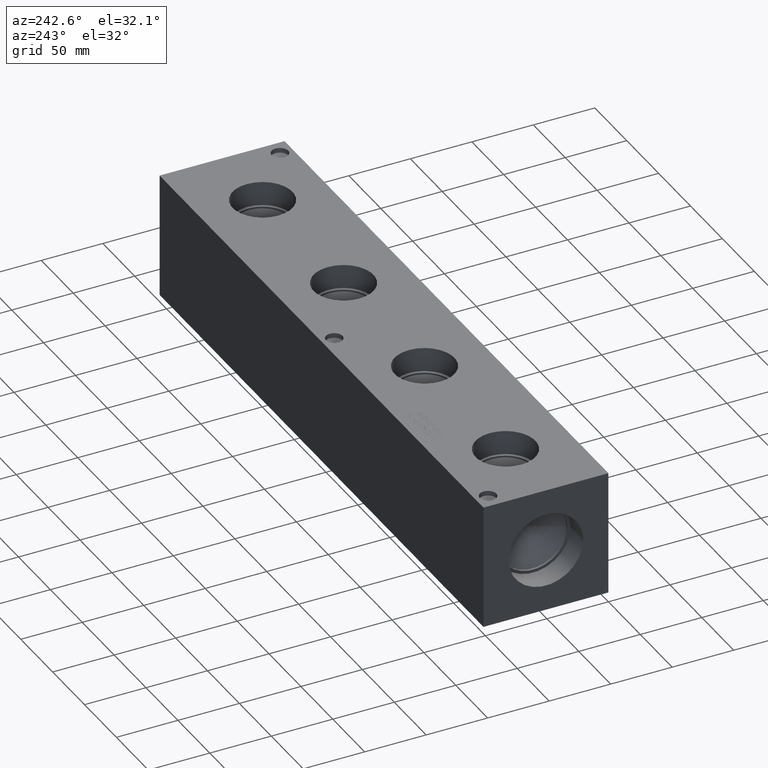
[diagram: clean part render]
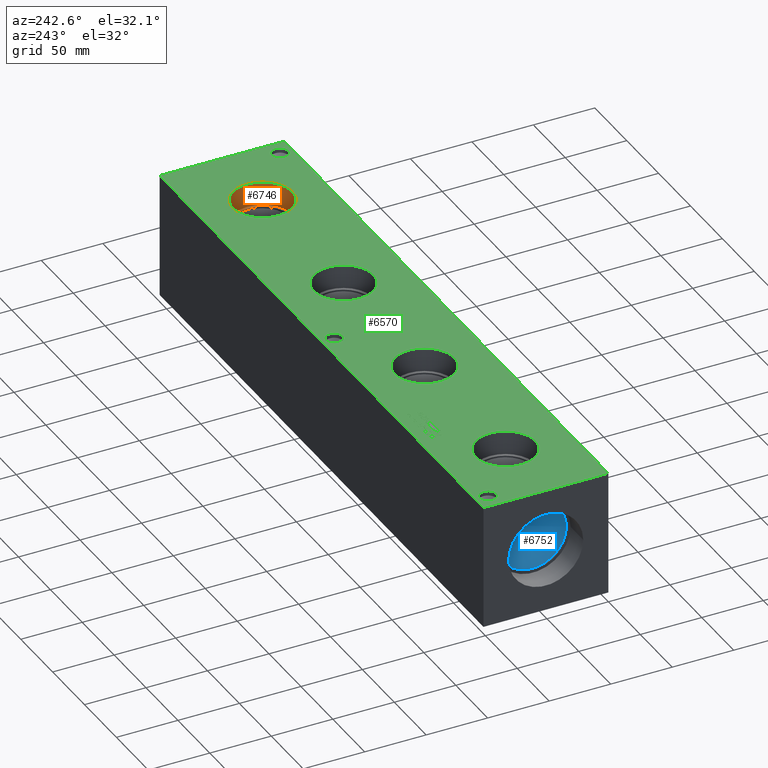
[diagram: same view with three faces highlighted in distinct colors, each labeled with its STEP entity id]
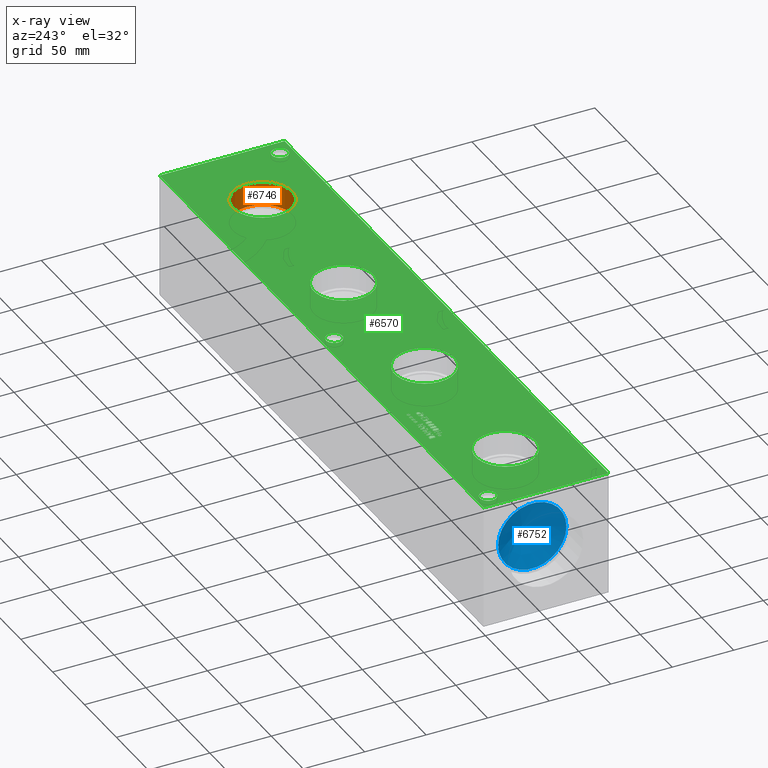
[diagram: x-ray of the same camera — body ghosted, the three highlighted faces saturated]
A machine part, auxiliary view with three faces highlighted in distinct colors.
The next image is the same camera in x-ray (body ghosted, the three faces saturated) — at least one of them is partly hidden behind the body in this view.
Their STEP definitions:

[orange] entity #6746 — the highlighted cylindrical surface (bore or boss wall) has radius 24.2824 mm, axis along (0, 0, 1).
#26=CYLINDRICAL_SURFACE('',#7078,24.2824);
#56=CIRCLE('',#6871,24.2824);
#57=CIRCLE('',#6872,24.2824);
#93=CIRCLE('',#7075,24.2824);
#94=CIRCLE('',#7076,24.2824);
#718=FACE_OUTER_BOUND('',#1099,.T.);
#1099=EDGE_LOOP('',(#5976,#5977,#5978,#5979,#5980,#5981));
#1808=LINE('',#11272,#2510);
#2510=VECTOR('',#8402,24.2824);
#3088=VERTEX_POINT('',#10473);
#3089=VERTEX_POINT('',#10474);
#3279=VERTEX_POINT('',#11265);
#3280=VERTEX_POINT('',#11266);
#3853=EDGE_CURVE('',#3088,#3089,#56,.T.);
#3854=EDGE_CURVE('',#3089,#3088,#57,.T.);
#4187=EDGE_CURVE('',#3279,#3280,#93,.T.);
#4188=EDGE_CURVE('',#3280,#3279,#94,.T.);
#4190=EDGE_CURVE('',#3089,#3280,#1808,.T.);
#5976=ORIENTED_EDGE('',*,*,#3853,.F.);
#5977=ORIENTED_EDGE('',*,*,#3854,.F.);
#5978=ORIENTED_EDGE('',*,*,#4190,.T.);
#5979=ORIENTED_EDGE('',*,*,#4187,.F.);
#5980=ORIENTED_EDGE('',*,*,#4188,.F.);
#5981=ORIENTED_EDGE('',*,*,#4190,.F.);
#6746=ADVANCED_FACE('',(#718),#26,.F.);
#6871=AXIS2_PLACEMENT_3D('',#10475,#7701,#7702);
#6872=AXIS2_PLACEMENT_3D('',#10476,#7703,#7704);
#7075=AXIS2_PLACEMENT_3D('',#11267,#8394,#8395);
#7076=AXIS2_PLACEMENT_3D('',#11268,#8396,#8397);
#7078=AXIS2_PLACEMENT_3D('',#11271,#8400,#8401);
#7701=DIRECTION('center_axis',(0.,0.,-1.));
#7702=DIRECTION('ref_axis',(1.,0.,0.));
#7703=DIRECTION('center_axis',(0.,0.,-1.));
#7704=DIRECTION('ref_axis',(1.,0.,0.));
#8394=DIRECTION('center_axis',(0.,0.,1.));
#8395=DIRECTION('ref_axis',(1.,0.,0.));
#8396=DIRECTION('center_axis',(0.,0.,1.));
#8397=DIRECTION('ref_axis',(1.,0.,0.));
#8400=DIRECTION('center_axis',(0.,0.,1.));
#8401=DIRECTION('ref_axis',(1.,0.,0.));
#8402=DIRECTION('',(0.,0.,-1.));
#10473=CARTESIAN_POINT('',(468.7824,50.8,101.6));
#10474=CARTESIAN_POINT('',(420.2176,50.8,101.6));
#10475=CARTESIAN_POINT('Origin',(444.5,50.8,101.6));
#10476=CARTESIAN_POINT('Origin',(444.5,50.8,101.6));
#11265=CARTESIAN_POINT('',(468.7824,50.8,82.0928));
#11266=CARTESIAN_POINT('',(420.2176,50.8,82.0928));
#11267=CARTESIAN_POINT('Origin',(444.5,50.8,82.0928));
#11268=CARTESIAN_POINT('Origin',(444.5,50.8,82.0928));
#11271=CARTESIAN_POINT('Origin',(444.5,50.8,91.8464));
#11272=CARTESIAN_POINT('',(420.2176,50.8,91.8464));

[blue] entity #6752 — the highlighted conical surface has half-angle 60 deg.
#43=CONICAL_SURFACE('',#7091,13.8938,1.0471975511966);
#103=CIRCLE('',#7092,27.7876);
#104=CIRCLE('',#7093,27.7876);
#724=FACE_OUTER_BOUND('',#1106,.T.);
#1106=EDGE_LOOP('',(#6005,#6006,#6007,#6008));
#1813=LINE('',#11302,#2515);
#2515=VECTOR('',#8435,13.8938);
#3290=VERTEX_POINT('',#11298);
#3291=VERTEX_POINT('',#11299);
#3292=VERTEX_POINT('',#11301);
#4202=EDGE_CURVE('',#3290,#3291,#103,.T.);
#4203=EDGE_CURVE('',#3291,#3292,#1813,.T.);
#4204=EDGE_CURVE('',#3291,#3290,#104,.T.);
#6005=ORIENTED_EDGE('',*,*,#4202,.T.);
#6006=ORIENTED_EDGE('',*,*,#4203,.T.);
#6007=ORIENTED_EDGE('',*,*,#4203,.F.);
#6008=ORIENTED_EDGE('',*,*,#4204,.T.);
#6752=ADVANCED_FACE('',(#724),#43,.F.);
#7091=AXIS2_PLACEMENT_3D('',#11297,#8431,#8432);
#7092=AXIS2_PLACEMENT_3D('',#11300,#8433,#8434);
#7093=AXIS2_PLACEMENT_3D('',#11303,#8436,#8437);
#8431=DIRECTION('center_axis',(-1.,0.,0.));
#8432=DIRECTION('ref_axis',(0.,1.,0.));
#8433=DIRECTION('center_axis',(-1.,0.,0.));
#8434=DIRECTION('ref_axis',(0.,1.,0.));
#8435=DIRECTION('',(0.5,0.866025403784439,-1.06057523872491E-16));
#8436=DIRECTION('center_axis',(-1.,0.,0.));
#8437=DIRECTION('ref_axis',(0.,1.,0.));
#11297=CARTESIAN_POINT('Origin',(29.5395091700668,50.8,50.8));
#11298=CARTESIAN_POINT('',(21.51792,78.5876,50.8));
#11299=CARTESIAN_POINT('',(21.51792,23.0124,50.8));
#11300=CARTESIAN_POINT('Origin',(21.51792,50.8,50.8));
#11301=CARTESIAN_POINT('',(37.5610983401336,50.8,50.8));
#11302=CARTESIAN_POINT('',(29.5395091700668,36.9062,50.8));
#11303=CARTESIAN_POINT('Origin',(21.51792,50.8,50.8));

[green] entity #6570 — the highlighted planar face has unit normal (0, 0, 1).
#44=CIRCLE('',#6859,6.7437);
#45=CIRCLE('',#6860,6.7437);
#46=CIRCLE('',#6861,6.7437);
#47=CIRCLE('',#6862,6.7437);
#48=CIRCLE('',#6863,6.7437);
#49=CIRCLE('',#6864,6.7437);
#50=CIRCLE('',#6865,24.2824);
#51=CIRCLE('',#6866,24.2824);
#52=CIRCLE('',#6867,24.2824);
#53=CIRCLE('',#6868,24.2824);
#54=CIRCLE('',#6869,24.2824);
#55=CIRCLE('',#6870,24.2824);
#56=CIRCLE('',#6871,24.2824);
#57=CIRCLE('',#6872,24.2824);
#117=FACE_BOUND('',#891,.T.);
#118=FACE_BOUND('',#892,.T.);
#119=FACE_BOUND('',#893,.T.);
#120=FACE_BOUND('',#894,.T.);
#121=FACE_BOUND('',#895,.T.);
#122=FACE_BOUND('',#896,.T.);
#123=FACE_BOUND('',#897,.T.);
#124=FACE_BOUND('',#898,.T.);
#125=FACE_BOUND('',#899,.T.);
#126=FACE_BOUND('',#900,.T.);
#127=FACE_BOUND('',#901,.T.);
#128=FACE_BOUND('',#902,.T.);
#129=FACE_BOUND('',#903,.T.);
#130=FACE_BOUND('',#904,.T.);
#131=FACE_BOUND('',#905,.T.);
#132=FACE_BOUND('',#906,.T.);
#133=FACE_BOUND('',#907,.T.);
#134=FACE_BOUND('',#908,.T.);
#135=FACE_BOUND('',#909,.T.);
#136=FACE_BOUND('',#910,.T.);
#137=FACE_BOUND('',#911,.T.);
#138=FACE_BOUND('',#912,.T.);
#139=FACE_BOUND('',#913,.T.);
#140=FACE_BOUND('',#914,.T.);
#141=FACE_BOUND('',#915,.T.);
#142=FACE_BOUND('',#916,.T.);
#239=PLANE('',#6858);
#542=FACE_OUTER_BOUND('',#890,.T.);
#890=EDGE_LOOP('',(#4915,#4916,#4917,#4918));
#891=EDGE_LOOP('',(#4919,#4920,#4921,#4922,#4923,#4924,#4925,#4926,#4927,
#4928,#4929,#4930,#4931,#4932,#4933,#4934,#4935,#4936));
#892=EDGE_LOOP('',(#4937,#4938,#4939,#4940,#4941,#4942,#4943,#4944,#4945,
#4946,#4947,#4948,#4949,#4950,#4951,#4952,#4953,#4954));
#893=EDGE_LOOP('',(#4955,#4956,#4957,#4958,#4959,#4960,#4961,#4962,#4963,
#4964,#4965,#4966,#4967));
#894=EDGE_LOOP('',(#4968,#4969,#4970,#4971,#4972,#4973,#4974,#4975));
#895=EDGE_LOOP('',(#4976,#4977,#4978,#4979,#4980,#4981,#4982));
#896=EDGE_LOOP('',(#4983,#4984,#4985,#4986,#4987,#4988,#4989,#4990));
#897=EDGE_LOOP('',(#4991,#4992,#4993,#4994,#4995,#4996,#4997,#4998,#4999,
#5000));
#898=EDGE_LOOP('',(#5001,#5002,#5003,#5004,#5005,#5006,#5007,#5008,#5009,
#5010,#5011,#5012,#5013,#5014,#5015,#5016,#5017,#5018));
#899=EDGE_LOOP('',(#5019,#5020,#5021,#5022,#5023,#5024,#5025,#5026,#5027,
#5028,#5029,#5030,#5031,#5032,#5033,#5034,#5035,#5036));
#900=EDGE_LOOP('',(#5037,#5038));
#901=EDGE_LOOP('',(#5039,#5040));
#902=EDGE_LOOP('',(#5041,#5042));
#903=EDGE_LOOP('',(#5043,#5044));
#904=EDGE_LOOP('',(#5045,#5046));
#905=EDGE_LOOP('',(#5047,#5048));
#906=EDGE_LOOP('',(#5049,#5050));
#907=EDGE_LOOP('',(#5051,#5052,#5053,#5054,#5055,#5056,#5057,#5058,#5059,
#5060,#5061,#5062,#5063,#5064,#5065,#5066,#5067));
#908=EDGE_LOOP('',(#5068,#5069,#5070,#5071,#5072,#5073,#5074,#5075,#5076,
#5077,#5078));
#909=EDGE_LOOP('',(#5079,#5080,#5081,#5082));
#910=EDGE_LOOP('',(#5083,#5084,#5085,#5086));
#911=EDGE_LOOP('',(#5087,#5088,#5089,#5090));
#912=EDGE_LOOP('',(#5091,#5092,#5093,#5094));
#913=EDGE_LOOP('',(#5095,#5096,#5097,#5098,#5099,#5100,#5101,#5102,#5103,
#5104,#5105,#5106,#5107,#5108,#5109,#5110,#5111,#5112));
#914=EDGE_LOOP('',(#5113,#5114,#5115,#5116,#5117,#5118,#5119,#5120,#5121,
#5122,#5123,#5124));
#915=EDGE_LOOP('',(#5125,#5126,#5127,#5128,#5129,#5130,#5131,#5132,#5133,
#5134,#5135));
#916=EDGE_LOOP('',(#5136,#5137,#5138,#5139,#5140,#5141,#5142,#5143,#5144));
#1138=LINE('',#8614,#1840);
#1141=LINE('',#8620,#1843);
#1144=LINE('',#8626,#1846);
#1147=LINE('',#8632,#1849);
#1150=LINE('',#8638,#1852);
#1163=LINE('',#8699,#1865);
#1167=LINE('',#8707,#1869);
#1170=LINE('',#8713,#1872);
#1173=LINE('',#8719,#1875);
#1176=LINE('',#8725,#1878);
#1179=LINE('',#8731,#1881);
#1182=LINE('',#8737,#1884);
#1185=LINE('',#8743,#1887);
#1188=LINE('',#8749,#1890);
#1191=LINE('',#8755,#1893);
#1194=LINE('',#8760,#1896);
#1196=LINE('',#8766,#1898);
#1200=LINE('',#8774,#1902);
#1203=LINE('',#8780,#1905);
#1206=LINE('',#8786,#1908);
#1209=LINE('',#8792,#1911);
#1212=LINE('',#8798,#1914);
#1215=LINE('',#8804,#1917);
#1218=LINE('',#8810,#1920);
#1221=LINE('',#8816,#1923);
#1224=LINE('',#8822,#1926);
#1227=LINE('',#8828,#1929);
#1230=LINE('',#8833,#1932);
#1232=LINE('',#8839,#1934);
#1236=LINE('',#8847,#1938);
#1239=LINE('',#8853,#1941);
#1242=LINE('',#8859,#1944);
#1245=LINE('',#8865,#1947);
#1248=LINE('',#8871,#1950);
#1251=LINE('',#8877,#1953);
#1254=LINE('',#8883,#1956);
#1257=LINE('',#8889,#1959);
#1260=LINE('',#8895,#1962);
#1263=LINE('',#8901,#1965);
#1266=LINE('',#8907,#1968);
#1269=LINE('',#8913,#1971);
#1272=LINE('',#8919,#1974);
#1275=LINE('',#8925,#1977);
#1278=LINE('',#8931,#1980);
#1281=LINE('',#8937,#1983);
#1284=LINE('',#8942,#1986);
#1343=LINE('',#9882,#2045);
#1347=LINE('',#9890,#2049);
#1350=LINE('',#9896,#2052);
#1353=LINE('',#9902,#2055);
#1356=LINE('',#9908,#2058);
#1359=LINE('',#9914,#2061);
#1362=LINE('',#9920,#2064);
#1365=LINE('',#9926,#2067);
#1368=LINE('',#9932,#2070);
#1371=LINE('',#9938,#2073);
#1374=LINE('',#9943,#2076);
#1376=LINE('',#9949,#2078);
#1380=LINE('',#9957,#2082);
#1388=LINE('',#10058,#2090);
#1391=LINE('',#10064,#2093);
#1400=LINE('',#10184,#2102);
#1403=LINE('',#10189,#2105);
#1405=LINE('',#10195,#2107);
#1406=LINE('',#10197,#2108);
#1407=LINE('',#10199,#2109);
#1408=LINE('',#10200,#2110);
#1409=LINE('',#10203,#2111);
#1410=LINE('',#10205,#2112);
#1411=LINE('',#10207,#2113);
#1412=LINE('',#10209,#2114);
#1413=LINE('',#10211,#2115);
#1414=LINE('',#10213,#2116);
#1415=LINE('',#10215,#2117);
#1416=LINE('',#10217,#2118);
#1417=LINE('',#10219,#2119);
#1418=LINE('',#10221,#2120);
#1419=LINE('',#10223,#2121);
#1420=LINE('',#10225,#2122);
#1421=LINE('',#10227,#2123);
#1422=LINE('',#10229,#2124);
#1423=LINE('',#10231,#2125);
#1424=LINE('',#10233,#2126);
#1425=LINE('',#10235,#2127);
#1426=LINE('',#10236,#2128);
#1427=LINE('',#10239,#2129);
#1428=LINE('',#10241,#2130);
#1429=LINE('',#10243,#2131);
#1430=LINE('',#10245,#2132);
#1431=LINE('',#10247,#2133);
#1432=LINE('',#10249,#2134);
#1433=LINE('',#10251,#2135);
#1434=LINE('',#10253,#2136);
#1435=LINE('',#10255,#2137);
#1436=LINE('',#10257,#2138);
#1437=LINE('',#10259,#2139);
#1438=LINE('',#10261,#2140);
#1439=LINE('',#10263,#2141);
#1440=LINE('',#10265,#2142);
#1441=LINE('',#10267,#2143);
#1442=LINE('',#10269,#2144);
#1443=LINE('',#10271,#2145);
#1444=LINE('',#10272,#2146);
#1445=LINE('',#10275,#2147);
#1446=LINE('',#10277,#2148);
#1447=LINE('',#10279,#2149);
#1448=LINE('',#10281,#2150);
#1449=LINE('',#10283,#2151);
#1450=LINE('',#10285,#2152);
#1451=LINE('',#10287,#2153);
#1452=LINE('',#10289,#2154);
#1453=LINE('',#10291,#2155);
#1454=LINE('',#10293,#2156);
#1455=LINE('',#10295,#2157);
#1456=LINE('',#10297,#2158);
#1457=LINE('',#10298,#2159);
#1458=LINE('',#10301,#2160);
#1459=LINE('',#10303,#2161);
#1460=LINE('',#10305,#2162);
#1461=LINE('',#10307,#2163);
#1462=LINE('',#10309,#2164);
#1463=LINE('',#10311,#2165);
#1464=LINE('',#10313,#2166);
#1465=LINE('',#10314,#2167);
#1466=LINE('',#10332,#2168);
#1467=LINE('',#10334,#2169);
#1468=LINE('',#10336,#2170);
#1469=LINE('',#10343,#2171);
#1470=LINE('',#10345,#2172);
#1471=LINE('',#10347,#2173);
#1472=LINE('',#10349,#2174);
#1473=LINE('',#10351,#2175);
#1474=LINE('',#10353,#2176);
#1475=LINE('',#10355,#2177);
#1476=LINE('',#10356,#2178);
#1477=LINE('',#10359,#2179);
#1478=LINE('',#10361,#2180);
#1479=LINE('',#10363,#2181);
#1480=LINE('',#10365,#2182);
#1481=LINE('',#10367,#2183);
#1482=LINE('',#10369,#2184);
#1483=LINE('',#10371,#2185);
#1484=LINE('',#10373,#2186);
#1485=LINE('',#10375,#2187);
#1486=LINE('',#10376,#2188);
#1487=LINE('',#10379,#2189);
#1488=LINE('',#10381,#2190);
#1489=LINE('',#10383,#2191);
#1490=LINE('',#10385,#2192);
#1491=LINE('',#10387,#2193);
#1492=LINE('',#10389,#2194);
#1493=LINE('',#10391,#2195);
#1494=LINE('',#10393,#2196);
#1495=LINE('',#10395,#2197);
#1496=LINE('',#10397,#2198);
#1497=LINE('',#10399,#2199);
#1498=LINE('',#10401,#2200);
#1499=LINE('',#10403,#2201);
#1500=LINE('',#10405,#2202);
#1501=LINE('',#10407,#2203);
#1502=LINE('',#10409,#2204);
#1503=LINE('',#10411,#2205);
#1504=LINE('',#10412,#2206);
#1505=LINE('',#10415,#2207);
#1506=LINE('',#10417,#2208);
#1507=LINE('',#10419,#2209);
#1508=LINE('',#10421,#2210);
#1509=LINE('',#10423,#2211);
#1510=LINE('',#10425,#2212);
#1511=LINE('',#10427,#2213);
#1512=LINE('',#10429,#2214);
#1513=LINE('',#10431,#2215);
#1514=LINE('',#10433,#2216);
#1515=LINE('',#10435,#2217);
#1516=LINE('',#10437,#2218);
#1517=LINE('',#10439,#2219);
#1518=LINE('',#10441,#2220);
#1519=LINE('',#10443,#2221);
#1520=LINE('',#10445,#2222);
#1521=LINE('',#10447,#2223);
#1522=LINE('',#10448,#2224);
#1840=VECTOR('',#7134,10.);
#1843=VECTOR('',#7139,10.);
#1846=VECTOR('',#7144,10.);
#1849=VECTOR('',#7149,10.);
#1852=VECTOR('',#7154,10.);
#1865=VECTOR('',#7177,10.);
#1869=VECTOR('',#7183,10.);
#1872=VECTOR('',#7188,10.);
#1875=VECTOR('',#7193,10.);
#1878=VECTOR('',#7198,10.);
#1881=VECTOR('',#7203,10.);
#1884=VECTOR('',#7208,10.);
#1887=VECTOR('',#7213,10.);
#1890=VECTOR('',#7218,10.);
#1893=VECTOR('',#7223,10.);
#1896=VECTOR('',#7228,10.);
#1898=VECTOR('',#7234,10.);
#1902=VECTOR('',#7240,10.);
#1905=VECTOR('',#7245,10.);
#1908=VECTOR('',#7250,10.);
#1911=VECTOR('',#7255,10.);
#1914=VECTOR('',#7260,10.);
#1917=VECTOR('',#7265,10.);
#1920=VECTOR('',#7270,10.);
#1923=VECTOR('',#7275,10.);
#1926=VECTOR('',#7280,10.);
#1929=VECTOR('',#7285,10.);
#1932=VECTOR('',#7290,10.);
#1934=VECTOR('',#7296,10.);
#1938=VECTOR('',#7302,10.);
#1941=VECTOR('',#7307,10.);
#1944=VECTOR('',#7312,10.);
#1947=VECTOR('',#7317,10.);
#1950=VECTOR('',#7322,10.);
#1953=VECTOR('',#7327,10.);
#1956=VECTOR('',#7332,10.);
#1959=VECTOR('',#7337,10.);
#1962=VECTOR('',#7342,10.);
#1965=VECTOR('',#7347,10.);
#1968=VECTOR('',#7352,10.);
#1971=VECTOR('',#7357,10.);
#1974=VECTOR('',#7362,10.);
#1977=VECTOR('',#7367,10.);
#1980=VECTOR('',#7372,10.);
#1983=VECTOR('',#7377,10.);
#1986=VECTOR('',#7382,10.);
#2045=VECTOR('',#7459,10.);
#2049=VECTOR('',#7465,10.);
#2052=VECTOR('',#7470,10.);
#2055=VECTOR('',#7475,10.);
#2058=VECTOR('',#7480,10.);
#2061=VECTOR('',#7485,10.);
#2064=VECTOR('',#7490,10.);
#2067=VECTOR('',#7495,10.);
#2070=VECTOR('',#7500,10.);
#2073=VECTOR('',#7505,10.);
#2076=VECTOR('',#7510,10.);
#2078=VECTOR('',#7516,10.);
#2082=VECTOR('',#7522,10.);
#2090=VECTOR('',#7532,10.);
#2093=VECTOR('',#7537,10.);
#2102=VECTOR('',#7548,10.);
#2105=VECTOR('',#7553,10.);
#2107=VECTOR('',#7559,10.);
#2108=VECTOR('',#7560,10.);
#2109=VECTOR('',#7561,10.);
#2110=VECTOR('',#7562,10.);
#2111=VECTOR('',#7563,10.);
#2112=VECTOR('',#7564,10.);
#2113=VECTOR('',#7565,10.);
#2114=VECTOR('',#7566,10.);
#2115=VECTOR('',#7567,10.);
#2116=VECTOR('',#7568,10.);
#2117=VECTOR('',#7569,10.);
#2118=VECTOR('',#7570,10.);
#2119=VECTOR('',#7571,10.);
#2120=VECTOR('',#7572,10.);
#2121=VECTOR('',#7573,10.);
#2122=VECTOR('',#7574,10.);
#2123=VECTOR('',#7575,10.);
#2124=VECTOR('',#7576,10.);
#2125=VECTOR('',#7577,10.);
#2126=VECTOR('',#7578,10.);
#2127=VECTOR('',#7579,10.);
#2128=VECTOR('',#7580,10.);
#2129=VECTOR('',#7581,10.);
#2130=VECTOR('',#7582,10.);
#2131=VECTOR('',#7583,10.);
#2132=VECTOR('',#7584,10.);
#2133=VECTOR('',#7585,10.);
#2134=VECTOR('',#7586,10.);
#2135=VECTOR('',#7587,10.);
#2136=VECTOR('',#7588,10.);
#2137=VECTOR('',#7589,10.);
#2138=VECTOR('',#7590,10.);
#2139=VECTOR('',#7591,10.);
#2140=VECTOR('',#7592,10.);
#2141=VECTOR('',#7593,10.);
#2142=VECTOR('',#7594,10.);
#2143=VECTOR('',#7595,10.);
#2144=VECTOR('',#7596,10.);
#2145=VECTOR('',#7597,10.);
#2146=VECTOR('',#7598,10.);
#2147=VECTOR('',#7599,10.);
#2148=VECTOR('',#7600,10.);
#2149=VECTOR('',#7601,10.);
#2150=VECTOR('',#7602,10.);
#2151=VECTOR('',#7603,10.);
#2152=VECTOR('',#7604,10.);
#2153=VECTOR('',#7605,10.);
#2154=VECTOR('',#7606,10.);
#2155=VECTOR('',#7607,10.);
#2156=VECTOR('',#7608,10.);
#2157=VECTOR('',#7609,10.);
#2158=VECTOR('',#7610,10.);
#2159=VECTOR('',#7611,10.);
#2160=VECTOR('',#7612,10.);
#2161=VECTOR('',#7613,10.);
#2162=VECTOR('',#7614,10.);
#2163=VECTOR('',#7615,10.);
#2164=VECTOR('',#7616,10.);
#2165=VECTOR('',#7617,10.);
#2166=VECTOR('',#7618,10.);
#2167=VECTOR('',#7619,10.);
#2168=VECTOR('',#7620,10.);
#2169=VECTOR('',#7621,10.);
#2170=VECTOR('',#7622,10.);
#2171=VECTOR('',#7623,10.);
#2172=VECTOR('',#7624,10.);
#2173=VECTOR('',#7625,10.);
#2174=VECTOR('',#7626,10.);
#2175=VECTOR('',#7627,10.);
#2176=VECTOR('',#7628,10.);
#2177=VECTOR('',#7629,10.);
#2178=VECTOR('',#7630,10.);
#2179=VECTOR('',#7631,10.);
#2180=VECTOR('',#7632,10.);
#2181=VECTOR('',#7633,10.);
#2182=VECTOR('',#7634,10.);
#2183=VECTOR('',#7635,10.);
#2184=VECTOR('',#7636,10.);
#2185=VECTOR('',#7637,10.);
#2186=VECTOR('',#7638,10.);
#2187=VECTOR('',#7639,10.);
#2188=VECTOR('',#7640,10.);
#2189=VECTOR('',#7641,10.);
#2190=VECTOR('',#7642,10.);
#2191=VECTOR('',#7643,10.);
#2192=VECTOR('',#7644,10.);
#2193=VECTOR('',#7645,10.);
#2194=VECTOR('',#7646,10.);
#2195=VECTOR('',#7647,10.);
#2196=VECTOR('',#7648,10.);
#2197=VECTOR('',#7649,10.);
#2198=VECTOR('',#7650,10.);
#2199=VECTOR('',#7651,10.);
#2200=VECTOR('',#7652,10.);
#2201=VECTOR('',#7653,10.);
#2202=VECTOR('',#7654,10.);
#2203=VECTOR('',#7655,10.);
#2204=VECTOR('',#7656,10.);
#2205=VECTOR('',#7657,10.);
#2206=VECTOR('',#7658,10.);
#2207=VECTOR('',#7659,10.);
#2208=VECTOR('',#7660,10.);
#2209=VECTOR('',#7661,10.);
#2210=VECTOR('',#7662,10.);
#2211=VECTOR('',#7663,10.);
#2212=VECTOR('',#7664,10.);
#2213=VECTOR('',#7665,10.);
#2214=VECTOR('',#7666,10.);
#2215=VECTOR('',#7667,10.);
#2216=VECTOR('',#7668,10.);
#2217=VECTOR('',#7669,10.);
#2218=VECTOR('',#7670,10.);
#2219=VECTOR('',#7671,10.);
#2220=VECTOR('',#7672,10.);
#2221=VECTOR('',#7673,10.);
#2222=VECTOR('',#7674,10.);
#2223=VECTOR('',#7675,10.);
#2224=VECTOR('',#7676,10.);
#2534=B_SPLINE_CURVE_WITH_KNOTS('',2,(#8581,#8582,#8583,#8584),
 .UNSPECIFIED.,.F.,.F.,(3,1,3),(0.,1.,2.),.UNSPECIFIED.);
#2536=B_SPLINE_CURVE_WITH_KNOTS('',2,(#8602,#8603,#8604,#8605),
 .UNSPECIFIED.,.F.,.F.,(3,1,3),(0.,1.,2.),.UNSPECIFIED.);
#2538=B_SPLINE_CURVE_WITH_KNOTS('',2,(#8651,#8652,#8653,#8654),
 .UNSPECIFIED.,.F.,.F.,(3,1,3),(0.,1.,2.),.UNSPECIFIED.);
#2540=B_SPLINE_CURVE_WITH_KNOTS('',2,(#8669,#8670,#8671,#8672),
 .UNSPECIFIED.,.F.,.F.,(3,1,3),(0.,1.,2.),.UNSPECIFIED.);
#2558=B_SPLINE_CURVE_WITH_KNOTS('',2,(#9107,#9108,#9109,#9110),
 .UNSPECIFIED.,.F.,.F.,(3,1,3),(0.,1.,2.),.UNSPECIFIED.);
#2560=B_SPLINE_CURVE_WITH_KNOTS('',2,(#9128,#9129,#9130,#9131),
 .UNSPECIFIED.,.F.,.F.,(3,1,3),(0.,1.,2.),.UNSPECIFIED.);
#2562=B_SPLINE_CURVE_WITH_KNOTS('',2,(#9147,#9148,#9149,#9150),
 .UNSPECIFIED.,.F.,.F.,(3,1,3),(0.,1.,2.),.UNSPECIFIED.);
#2564=B_SPLINE_CURVE_WITH_KNOTS('',2,(#9165,#9166,#9167,#9168),
 .UNSPECIFIED.,.F.,.F.,(3,1,3),(0.,1.,2.),.UNSPECIFIED.);
#2582=B_SPLINE_CURVE_WITH_KNOTS('',2,(#9336,#9337,#9338,#9339),
 .UNSPECIFIED.,.F.,.F.,(3,1,3),(0.,1.,2.),.UNSPECIFIED.);
#2584=B_SPLINE_CURVE_WITH_KNOTS('',2,(#9357,#9358,#9359,#9360),
 .UNSPECIFIED.,.F.,.F.,(3,1,3),(0.,1.,2.),.UNSPECIFIED.);
#2586=B_SPLINE_CURVE_WITH_KNOTS('',2,(#9376,#9377,#9378,#9379),
 .UNSPECIFIED.,.F.,.F.,(3,1,3),(0.,1.,2.),.UNSPECIFIED.);
#2588=B_SPLINE_CURVE_WITH_KNOTS('',2,(#9394,#9395,#9396,#9397),
 .UNSPECIFIED.,.F.,.F.,(3,1,3),(0.,1.,2.),.UNSPECIFIED.);
#2606=B_SPLINE_CURVE_WITH_KNOTS('',2,(#9565,#9566,#9567,#9568),
 .UNSPECIFIED.,.F.,.F.,(3,1,3),(0.,1.,2.),.UNSPECIFIED.);
#2608=B_SPLINE_CURVE_WITH_KNOTS('',2,(#9586,#9587,#9588,#9589),
 .UNSPECIFIED.,.F.,.F.,(3,1,3),(0.,1.,2.),.UNSPECIFIED.);
#2610=B_SPLINE_CURVE_WITH_KNOTS('',2,(#9605,#9606,#9607,#9608),
 .UNSPECIFIED.,.F.,.F.,(3,1,3),(0.,1.,2.),.UNSPECIFIED.);
#2612=B_SPLINE_CURVE_WITH_KNOTS('',2,(#9623,#9624,#9625,#9626),
 .UNSPECIFIED.,.F.,.F.,(3,1,3),(0.,1.,2.),.UNSPECIFIED.);
#2630=B_SPLINE_CURVE_WITH_KNOTS('',2,(#9794,#9795,#9796,#9797),
 .UNSPECIFIED.,.F.,.F.,(3,1,3),(0.,1.,2.),.UNSPECIFIED.);
#2632=B_SPLINE_CURVE_WITH_KNOTS('',2,(#9815,#9816,#9817,#9818),
 .UNSPECIFIED.,.F.,.F.,(3,1,3),(0.,1.,2.),.UNSPECIFIED.);
#2634=B_SPLINE_CURVE_WITH_KNOTS('',2,(#9834,#9835,#9836,#9837),
 .UNSPECIFIED.,.F.,.F.,(3,1,3),(0.,1.,2.),.UNSPECIFIED.);
#2636=B_SPLINE_CURVE_WITH_KNOTS('',2,(#9852,#9853,#9854,#9855),
 .UNSPECIFIED.,.F.,.F.,(3,1,3),(0.,1.,2.),.UNSPECIFIED.);
#2638=B_SPLINE_CURVE_WITH_KNOTS('',2,(#9970,#9971,#9972,#9973),
 .UNSPECIFIED.,.F.,.F.,(3,1,3),(0.,1.,2.),.UNSPECIFIED.);
#2640=B_SPLINE_CURVE_WITH_KNOTS('',2,(#9989,#9990,#9991,#9992),
 .UNSPECIFIED.,.F.,.F.,(3,1,3),(0.,1.,2.),.UNSPECIFIED.);
#2642=B_SPLINE_CURVE_WITH_KNOTS('',2,(#10008,#10009,#10010,#10011),
 .UNSPECIFIED.,.F.,.F.,(3,1,3),(0.,1.,2.),.UNSPECIFIED.);
#2644=B_SPLINE_CURVE_WITH_KNOTS('',2,(#10027,#10028,#10029,#10030),
 .UNSPECIFIED.,.F.,.F.,(3,1,3),(0.,1.,2.),.UNSPECIFIED.);
#2646=B_SPLINE_CURVE_WITH_KNOTS('',2,(#10046,#10047,#10048,#10049),
 .UNSPECIFIED.,.F.,.F.,(3,1,3),(0.,1.,2.),.UNSPECIFIED.);
#2648=B_SPLINE_CURVE_WITH_KNOTS('',2,(#10077,#10078,#10079,#10080),
 .UNSPECIFIED.,.F.,.F.,(3,1,3),(0.,1.,2.),.UNSPECIFIED.);
#2650=B_SPLINE_CURVE_WITH_KNOTS('',2,(#10096,#10097,#10098,#10099),
 .UNSPECIFIED.,.F.,.F.,(3,1,3),(0.,1.,2.),.UNSPECIFIED.);
#2652=B_SPLINE_CURVE_WITH_KNOTS('',2,(#10115,#10116,#10117,#10118),
 .UNSPECIFIED.,.F.,.F.,(3,1,3),(0.,1.,2.),.UNSPECIFIED.);
#2654=B_SPLINE_CURVE_WITH_KNOTS('',2,(#10134,#10135,#10136,#10137),
 .UNSPECIFIED.,.F.,.F.,(3,1,3),(0.,1.,2.),.UNSPECIFIED.);
#2656=B_SPLINE_CURVE_WITH_KNOTS('',2,(#10153,#10154,#10155,#10156),
 .UNSPECIFIED.,.F.,.F.,(3,1,3),(0.,1.,2.),.UNSPECIFIED.);
#2658=B_SPLINE_CURVE_WITH_KNOTS('',2,(#10172,#10173,#10174,#10175),
 .UNSPECIFIED.,.F.,.F.,(3,1,3),(0.,1.,2.),.UNSPECIFIED.);
#2660=B_SPLINE_CURVE_WITH_KNOTS('',2,(#10317,#10318,#10319,#10320),
 .UNSPECIFIED.,.F.,.F.,(3,1,3),(0.,1.,2.),.UNSPECIFIED.);
#2661=B_SPLINE_CURVE_WITH_KNOTS('',2,(#10322,#10323,#10324,#10325),
 .UNSPECIFIED.,.F.,.F.,(3,1,3),(0.,1.,2.),.UNSPECIFIED.);
#2662=B_SPLINE_CURVE_WITH_KNOTS('',2,(#10327,#10328,#10329,#10330),
 .UNSPECIFIED.,.F.,.F.,(3,1,3),(0.,1.,2.),.UNSPECIFIED.);
#2663=B_SPLINE_CURVE_WITH_KNOTS('',2,(#10337,#10338,#10339,#10340),
 .UNSPECIFIED.,.F.,.F.,(3,1,3),(0.,1.,2.),.UNSPECIFIED.);
#2690=VERTEX_POINT('',#8579);
#2691=VERTEX_POINT('',#8580);
#2694=VERTEX_POINT('',#8601);
#2696=VERTEX_POINT('',#8613);
#2698=VERTEX_POINT('',#8619);
#2700=VERTEX_POINT('',#8625);
#2702=VERTEX_POINT('',#8631);
#2704=VERTEX_POINT('',#8637);
#2706=VERTEX_POINT('',#8650);
#2714=VERTEX_POINT('',#8697);
#2715=VERTEX_POINT('',#8698);
#2718=VERTEX_POINT('',#8706);
#2720=VERTEX_POINT('',#8712);
#2722=VERTEX_POINT('',#8718);
#2724=VERTEX_POINT('',#8724);
#2726=VERTEX_POINT('',#8730);
#2728=VERTEX_POINT('',#8736);
#2730=VERTEX_POINT('',#8742);
#2732=VERTEX_POINT('',#8748);
#2734=VERTEX_POINT('',#8754);
#2736=VERTEX_POINT('',#8764);
#2737=VERTEX_POINT('',#8765);
#2740=VERTEX_POINT('',#8773);
#2742=VERTEX_POINT('',#8779);
#2744=VERTEX_POINT('',#8785);
#2746=VERTEX_POINT('',#8791);
#2748=VERTEX_POINT('',#8797);
#2750=VERTEX_POINT('',#8803);
#2752=VERTEX_POINT('',#8809);
#2754=VERTEX_POINT('',#8815);
#2756=VERTEX_POINT('',#8821);
#2758=VERTEX_POINT('',#8827);
#2760=VERTEX_POINT('',#8837);
#2761=VERTEX_POINT('',#8838);
#2764=VERTEX_POINT('',#8846);
#2766=VERTEX_POINT('',#8852);
#2768=VERTEX_POINT('',#8858);
#2770=VERTEX_POINT('',#8864);
#2772=VERTEX_POINT('',#8870);
#2774=VERTEX_POINT('',#8876);
#2776=VERTEX_POINT('',#8882);
#2778=VERTEX_POINT('',#8888);
#2780=VERTEX_POINT('',#8894);
#2782=VERTEX_POINT('',#8900);
#2784=VERTEX_POINT('',#8906);
#2786=VERTEX_POINT('',#8912);
#2788=VERTEX_POINT('',#8918);
#2790=VERTEX_POINT('',#8924);
#2792=VERTEX_POINT('',#8930);
#2794=VERTEX_POINT('',#8936);
#2812=VERTEX_POINT('',#9105);
#2813=VERTEX_POINT('',#9106);
#2816=VERTEX_POINT('',#9127);
#2818=VERTEX_POINT('',#9146);
#2836=VERTEX_POINT('',#9334);
#2837=VERTEX_POINT('',#9335);
#2840=VERTEX_POINT('',#9356);
#2842=VERTEX_POINT('',#9375);
#2860=VERTEX_POINT('',#9563);
#2861=VERTEX_POINT('',#9564);
#2864=VERTEX_POINT('',#9585);
#2866=VERTEX_POINT('',#9604);
#2884=VERTEX_POINT('',#9792);
#2885=VERTEX_POINT('',#9793);
#2888=VERTEX_POINT('',#9814);
#2890=VERTEX_POINT('',#9833);
#2898=VERTEX_POINT('',#9880);
#2899=VERTEX_POINT('',#9881);
#2902=VERTEX_POINT('',#9889);
#2904=VERTEX_POINT('',#9895);
#2906=VERTEX_POINT('',#9901);
#2908=VERTEX_POINT('',#9907);
#2910=VERTEX_POINT('',#9913);
#2912=VERTEX_POINT('',#9919);
#2914=VERTEX_POINT('',#9925);
#2916=VERTEX_POINT('',#9931);
#2918=VERTEX_POINT('',#9937);
#2920=VERTEX_POINT('',#9947);
#2921=VERTEX_POINT('',#9948);
#2924=VERTEX_POINT('',#9956);
#2926=VERTEX_POINT('',#9969);
#2928=VERTEX_POINT('',#9988);
#2930=VERTEX_POINT('',#10007);
#2932=VERTEX_POINT('',#10026);
#2934=VERTEX_POINT('',#10045);
#2936=VERTEX_POINT('',#10057);
#2938=VERTEX_POINT('',#10063);
#2940=VERTEX_POINT('',#10076);
#2942=VERTEX_POINT('',#10095);
#2944=VERTEX_POINT('',#10114);
#2946=VERTEX_POINT('',#10133);
#2948=VERTEX_POINT('',#10152);
#2950=VERTEX_POINT('',#10171);
#2952=VERTEX_POINT('',#10183);
#2954=VERTEX_POINT('',#10193);
#2955=VERTEX_POINT('',#10194);
#2956=VERTEX_POINT('',#10196);
#2957=VERTEX_POINT('',#10198);
#2958=VERTEX_POINT('',#10201);
#2959=VERTEX_POINT('',#10202);
#2960=VERTEX_POINT('',#10204);
#2961=VERTEX_POINT('',#10206);
#2962=VERTEX_POINT('',#10208);
#2963=VERTEX_POINT('',#10210);
#2964=VERTEX_POINT('',#10212);
#2965=VERTEX_POINT('',#10214);
#2966=VERTEX_POINT('',#10216);
#2967=VERTEX_POINT('',#10218);
#2968=VERTEX_POINT('',#10220);
#2969=VERTEX_POINT('',#10222);
#2970=VERTEX_POINT('',#10224);
#2971=VERTEX_POINT('',#10226);
#2972=VERTEX_POINT('',#10228);
#2973=VERTEX_POINT('',#10230);
#2974=VERTEX_POINT('',#10232);
#2975=VERTEX_POINT('',#10234);
#2976=VERTEX_POINT('',#10237);
#2977=VERTEX_POINT('',#10238);
#2978=VERTEX_POINT('',#10240);
#2979=VERTEX_POINT('',#10242);
#2980=VERTEX_POINT('',#10244);
#2981=VERTEX_POINT('',#10246);
#2982=VERTEX_POINT('',#10248);
#2983=VERTEX_POINT('',#10250);
#2984=VERTEX_POINT('',#10252);
#2985=VERTEX_POINT('',#10254);
#2986=VERTEX_POINT('',#10256);
#2987=VERTEX_POINT('',#10258);
#2988=VERTEX_POINT('',#10260);
#2989=VERTEX_POINT('',#10262);
#2990=VERTEX_POINT('',#10264);
#2991=VERTEX_POINT('',#10266);
#2992=VERTEX_POINT('',#10268);
#2993=VERTEX_POINT('',#10270);
#2994=VERTEX_POINT('',#10273);
#2995=VERTEX_POINT('',#10274);
#2996=VERTEX_POINT('',#10276);
#2997=VERTEX_POINT('',#10278);
#2998=VERTEX_POINT('',#10280);
#2999=VERTEX_POINT('',#10282);
#3000=VERTEX_POINT('',#10284);
#3001=VERTEX_POINT('',#10286);
#3002=VERTEX_POINT('',#10288);
#3003=VERTEX_POINT('',#10290);
#3004=VERTEX_POINT('',#10292);
#3005=VERTEX_POINT('',#10294);
#3006=VERTEX_POINT('',#10296);
#3007=VERTEX_POINT('',#10299);
#3008=VERTEX_POINT('',#10300);
#3009=VERTEX_POINT('',#10302);
#3010=VERTEX_POINT('',#10304);
#3011=VERTEX_POINT('',#10306);
#3012=VERTEX_POINT('',#10308);
#3013=VERTEX_POINT('',#10310);
#3014=VERTEX_POINT('',#10312);
#3015=VERTEX_POINT('',#10315);
#3016=VERTEX_POINT('',#10316);
#3017=VERTEX_POINT('',#10321);
#3018=VERTEX_POINT('',#10326);
#3019=VERTEX_POINT('',#10331);
#3020=VERTEX_POINT('',#10333);
#3021=VERTEX_POINT('',#10335);
#3022=VERTEX_POINT('',#10341);
#3023=VERTEX_POINT('',#10342);
#3024=VERTEX_POINT('',#10344);
#3025=VERTEX_POINT('',#10346);
#3026=VERTEX_POINT('',#10348);
#3027=VERTEX_POINT('',#10350);
#3028=VERTEX_POINT('',#10352);
#3029=VERTEX_POINT('',#10354);
#3030=VERTEX_POINT('',#10357);
#3031=VERTEX_POINT('',#10358);
#3032=VERTEX_POINT('',#10360);
#3033=VERTEX_POINT('',#10362);
#3034=VERTEX_POINT('',#10364);
#3035=VERTEX_POINT('',#10366);
#3036=VERTEX_POINT('',#10368);
#3037=VERTEX_POINT('',#10370);
#3038=VERTEX_POINT('',#10372);
#3039=VERTEX_POINT('',#10374);
#3040=VERTEX_POINT('',#10377);
#3041=VERTEX_POINT('',#10378);
#3042=VERTEX_POINT('',#10380);
#3043=VERTEX_POINT('',#10382);
#3044=VERTEX_POINT('',#10384);
#3045=VERTEX_POINT('',#10386);
#3046=VERTEX_POINT('',#10388);
#3047=VERTEX_POINT('',#10390);
#3048=VERTEX_POINT('',#10392);
#3049=VERTEX_POINT('',#10394);
#3050=VERTEX_POINT('',#10396);
#3051=VERTEX_POINT('',#10398);
#3052=VERTEX_POINT('',#10400);
#3053=VERTEX_POINT('',#10402);
#3054=VERTEX_POINT('',#10404);
#3055=VERTEX_POINT('',#10406);
#3056=VERTEX_POINT('',#10408);
#3057=VERTEX_POINT('',#10410);
#3058=VERTEX_POINT('',#10413);
#3059=VERTEX_POINT('',#10414);
#3060=VERTEX_POINT('',#10416);
#3061=VERTEX_POINT('',#10418);
#3062=VERTEX_POINT('',#10420);
#3063=VERTEX_POINT('',#10422);
#3064=VERTEX_POINT('',#10424);
#3065=VERTEX_POINT('',#10426);
#3066=VERTEX_POINT('',#10428);
#3067=VERTEX_POINT('',#10430);
#3068=VERTEX_POINT('',#10432);
#3069=VERTEX_POINT('',#10434);
#3070=VERTEX_POINT('',#10436);
#3071=VERTEX_POINT('',#10438);
#3072=VERTEX_POINT('',#10440);
#3073=VERTEX_POINT('',#10442);
#3074=VERTEX_POINT('',#10444);
#3075=VERTEX_POINT('',#10446);
#3076=VERTEX_POINT('',#10449);
#3077=VERTEX_POINT('',#10450);
#3078=VERTEX_POINT('',#10453);
#3079=VERTEX_POINT('',#10454);
#3080=VERTEX_POINT('',#10457);
#3081=VERTEX_POINT('',#10458);
#3082=VERTEX_POINT('',#10461);
#3083=VERTEX_POINT('',#10462);
#3084=VERTEX_POINT('',#10465);
#3085=VERTEX_POINT('',#10466);
#3086=VERTEX_POINT('',#10469);
#3087=VERTEX_POINT('',#10470);
#3088=VERTEX_POINT('',#10473);
#3089=VERTEX_POINT('',#10474);
#3323=EDGE_CURVE('',#2690,#2691,#2534,.T.);
#3327=EDGE_CURVE('',#2694,#2690,#2536,.T.);
#3330=EDGE_CURVE('',#2696,#2694,#1138,.T.);
#3333=EDGE_CURVE('',#2698,#2696,#1141,.T.);
#3336=EDGE_CURVE('',#2700,#2698,#1144,.T.);
#3339=EDGE_CURVE('',#2702,#2700,#1147,.T.);
#3342=EDGE_CURVE('',#2704,#2702,#1150,.T.);
#3345=EDGE_CURVE('',#2706,#2704,#2538,.T.);
#3348=EDGE_CURVE('',#2691,#2706,#2540,.T.);
#3359=EDGE_CURVE('',#2714,#2715,#1163,.T.);
#3363=EDGE_CURVE('',#2718,#2714,#1167,.T.);
#3366=EDGE_CURVE('',#2720,#2718,#1170,.T.);
#3369=EDGE_CURVE('',#2722,#2720,#1173,.T.);
#3372=EDGE_CURVE('',#2724,#2722,#1176,.T.);
#3375=EDGE_CURVE('',#2726,#2724,#1179,.T.);
#3378=EDGE_CURVE('',#2728,#2726,#1182,.T.);
#3381=EDGE_CURVE('',#2730,#2728,#1185,.T.);
#3384=EDGE_CURVE('',#2732,#2730,#1188,.T.);
#3387=EDGE_CURVE('',#2734,#2732,#1191,.T.);
#3390=EDGE_CURVE('',#2715,#2734,#1194,.T.);
#3392=EDGE_CURVE('',#2736,#2737,#1196,.T.);
#3396=EDGE_CURVE('',#2740,#2736,#1200,.T.);
#3399=EDGE_CURVE('',#2742,#2740,#1203,.T.);
#3402=EDGE_CURVE('',#2744,#2742,#1206,.T.);
#3405=EDGE_CURVE('',#2746,#2744,#1209,.T.);
#3408=EDGE_CURVE('',#2748,#2746,#1212,.T.);
#3411=EDGE_CURVE('',#2750,#2748,#1215,.T.);
#3414=EDGE_CURVE('',#2752,#2750,#1218,.T.);
#3417=EDGE_CURVE('',#2754,#2752,#1221,.T.);
#3420=EDGE_CURVE('',#2756,#2754,#1224,.T.);
#3423=EDGE_CURVE('',#2758,#2756,#1227,.T.);
#3426=EDGE_CURVE('',#2737,#2758,#1230,.T.);
#3428=EDGE_CURVE('',#2760,#2761,#1232,.T.);
#3432=EDGE_CURVE('',#2764,#2760,#1236,.T.);
#3435=EDGE_CURVE('',#2766,#2764,#1239,.T.);
#3438=EDGE_CURVE('',#2768,#2766,#1242,.T.);
#3441=EDGE_CURVE('',#2770,#2768,#1245,.T.);
#3444=EDGE_CURVE('',#2772,#2770,#1248,.T.);
#3447=EDGE_CURVE('',#2774,#2772,#1251,.T.);
#3450=EDGE_CURVE('',#2776,#2774,#1254,.T.);
#3453=EDGE_CURVE('',#2778,#2776,#1257,.T.);
#3456=EDGE_CURVE('',#2780,#2778,#1260,.T.);
#3459=EDGE_CURVE('',#2782,#2780,#1263,.T.);
#3462=EDGE_CURVE('',#2784,#2782,#1266,.T.);
#3465=EDGE_CURVE('',#2786,#2784,#1269,.T.);
#3468=EDGE_CURVE('',#2788,#2786,#1272,.T.);
#3471=EDGE_CURVE('',#2790,#2788,#1275,.T.);
#3474=EDGE_CURVE('',#2792,#2790,#1278,.T.);
#3477=EDGE_CURVE('',#2794,#2792,#1281,.T.);
#3480=EDGE_CURVE('',#2761,#2794,#1284,.T.);
#3506=EDGE_CURVE('',#2812,#2813,#2558,.T.);
#3510=EDGE_CURVE('',#2816,#2812,#2560,.T.);
#3513=EDGE_CURVE('',#2818,#2816,#2562,.T.);
#3516=EDGE_CURVE('',#2813,#2818,#2564,.T.);
#3542=EDGE_CURVE('',#2836,#2837,#2582,.T.);
#3546=EDGE_CURVE('',#2840,#2836,#2584,.T.);
#3549=EDGE_CURVE('',#2842,#2840,#2586,.T.);
#3552=EDGE_CURVE('',#2837,#2842,#2588,.T.);
#3578=EDGE_CURVE('',#2860,#2861,#2606,.T.);
#3582=EDGE_CURVE('',#2864,#2860,#2608,.T.);
#3585=EDGE_CURVE('',#2866,#2864,#2610,.T.);
#3588=EDGE_CURVE('',#2861,#2866,#2612,.T.);
#3614=EDGE_CURVE('',#2884,#2885,#2630,.T.);
#3618=EDGE_CURVE('',#2888,#2884,#2632,.T.);
#3621=EDGE_CURVE('',#2890,#2888,#2634,.T.);
#3624=EDGE_CURVE('',#2885,#2890,#2636,.T.);
#3635=EDGE_CURVE('',#2898,#2899,#1343,.T.);
#3639=EDGE_CURVE('',#2902,#2898,#1347,.T.);
#3642=EDGE_CURVE('',#2904,#2902,#1350,.T.);
#3645=EDGE_CURVE('',#2906,#2904,#1353,.T.);
#3648=EDGE_CURVE('',#2908,#2906,#1356,.T.);
#3651=EDGE_CURVE('',#2910,#2908,#1359,.T.);
#3654=EDGE_CURVE('',#2912,#2910,#1362,.T.);
#3657=EDGE_CURVE('',#2914,#2912,#1365,.T.);
#3660=EDGE_CURVE('',#2916,#2914,#1368,.T.);
#3663=EDGE_CURVE('',#2918,#2916,#1371,.T.);
#3666=EDGE_CURVE('',#2899,#2918,#1374,.T.);
#3668=EDGE_CURVE('',#2920,#2921,#1376,.T.);
#3672=EDGE_CURVE('',#2924,#2920,#1380,.T.);
#3675=EDGE_CURVE('',#2926,#2924,#2638,.T.);
#3678=EDGE_CURVE('',#2928,#2926,#2640,.T.);
#3681=EDGE_CURVE('',#2930,#2928,#2642,.T.);
#3684=EDGE_CURVE('',#2932,#2930,#2644,.T.);
#3687=EDGE_CURVE('',#2934,#2932,#2646,.T.);
#3690=EDGE_CURVE('',#2936,#2934,#1388,.T.);
#3693=EDGE_CURVE('',#2938,#2936,#1391,.T.);
#3696=EDGE_CURVE('',#2940,#2938,#2648,.T.);
#3699=EDGE_CURVE('',#2942,#2940,#2650,.T.);
#3702=EDGE_CURVE('',#2944,#2942,#2652,.T.);
#3705=EDGE_CURVE('',#2946,#2944,#2654,.T.);
#3708=EDGE_CURVE('',#2948,#2946,#2656,.T.);
#3711=EDGE_CURVE('',#2950,#2948,#2658,.T.);
#3714=EDGE_CURVE('',#2952,#2950,#1400,.T.);
#3717=EDGE_CURVE('',#2921,#2952,#1403,.T.);
#3719=EDGE_CURVE('',#2954,#2955,#1405,.T.);
#3720=EDGE_CURVE('',#2955,#2956,#1406,.T.);
#3721=EDGE_CURVE('',#2956,#2957,#1407,.T.);
#3722=EDGE_CURVE('',#2957,#2954,#1408,.T.);
#3723=EDGE_CURVE('',#2958,#2959,#1409,.T.);
#3724=EDGE_CURVE('',#2959,#2960,#1410,.T.);
#3725=EDGE_CURVE('',#2960,#2961,#1411,.T.);
#3726=EDGE_CURVE('',#2961,#2962,#1412,.T.);
#3727=EDGE_CURVE('',#2962,#2963,#1413,.T.);
#3728=EDGE_CURVE('',#2963,#2964,#1414,.T.);
#3729=EDGE_CURVE('',#2964,#2965,#1415,.T.);
#3730=EDGE_CURVE('',#2965,#2966,#1416,.T.);
#3731=EDGE_CURVE('',#2966,#2967,#1417,.T.);
#3732=EDGE_CURVE('',#2967,#2968,#1418,.T.);
#3733=EDGE_CURVE('',#2968,#2969,#1419,.T.);
#3734=EDGE_CURVE('',#2969,#2970,#1420,.T.);
#3735=EDGE_CURVE('',#2970,#2971,#1421,.T.);
#3736=EDGE_CURVE('',#2971,#2972,#1422,.T.);
#3737=EDGE_CURVE('',#2972,#2973,#1423,.T.);
#3738=EDGE_CURVE('',#2973,#2974,#1424,.T.);
#3739=EDGE_CURVE('',#2974,#2975,#1425,.T.);
#3740=EDGE_CURVE('',#2975,#2958,#1426,.T.);
#3741=EDGE_CURVE('',#2976,#2977,#1427,.T.);
#3742=EDGE_CURVE('',#2977,#2978,#1428,.T.);
#3743=EDGE_CURVE('',#2978,#2979,#1429,.T.);
#3744=EDGE_CURVE('',#2979,#2980,#1430,.T.);
#3745=EDGE_CURVE('',#2980,#2981,#1431,.T.);
#3746=EDGE_CURVE('',#2981,#2982,#1432,.T.);
#3747=EDGE_CURVE('',#2982,#2983,#1433,.T.);
#3748=EDGE_CURVE('',#2983,#2984,#1434,.T.);
#3749=EDGE_CURVE('',#2984,#2985,#1435,.T.);
#3750=EDGE_CURVE('',#2985,#2986,#1436,.T.);
#3751=EDGE_CURVE('',#2986,#2987,#1437,.T.);
#3752=EDGE_CURVE('',#2987,#2988,#1438,.T.);
#3753=EDGE_CURVE('',#2988,#2989,#1439,.T.);
#3754=EDGE_CURVE('',#2989,#2990,#1440,.T.);
#3755=EDGE_CURVE('',#2990,#2991,#1441,.T.);
#3756=EDGE_CURVE('',#2991,#2992,#1442,.T.);
#3757=EDGE_CURVE('',#2992,#2993,#1443,.T.);
#3758=EDGE_CURVE('',#2993,#2976,#1444,.T.);
#3759=EDGE_CURVE('',#2994,#2995,#1445,.T.);
#3760=EDGE_CURVE('',#2995,#2996,#1446,.T.);
#3761=EDGE_CURVE('',#2996,#2997,#1447,.T.);
#3762=EDGE_CURVE('',#2997,#2998,#1448,.T.);
#3763=EDGE_CURVE('',#2998,#2999,#1449,.T.);
#3764=EDGE_CURVE('',#2999,#3000,#1450,.T.);
#3765=EDGE_CURVE('',#3000,#3001,#1451,.T.);
#3766=EDGE_CURVE('',#3001,#3002,#1452,.T.);
#3767=EDGE_CURVE('',#3002,#3003,#1453,.T.);
#3768=EDGE_CURVE('',#3003,#3004,#1454,.T.);
#3769=EDGE_CURVE('',#3004,#3005,#1455,.T.);
#3770=EDGE_CURVE('',#3005,#3006,#1456,.T.);
#3771=EDGE_CURVE('',#3006,#2994,#1457,.T.);
#3772=EDGE_CURVE('',#3007,#3008,#1458,.T.);
#3773=EDGE_CURVE('',#3008,#3009,#1459,.T.);
#3774=EDGE_CURVE('',#3009,#3010,#1460,.T.);
#3775=EDGE_CURVE('',#3010,#3011,#1461,.T.);
#3776=EDGE_CURVE('',#3011,#3012,#1462,.T.);
#3777=EDGE_CURVE('',#3012,#3013,#1463,.T.);
#3778=EDGE_CURVE('',#3013,#3014,#1464,.T.);
#3779=EDGE_CURVE('',#3014,#3007,#1465,.T.);
#3780=EDGE_CURVE('',#3015,#3016,#2660,.T.);
#3781=EDGE_CURVE('',#3016,#3017,#2661,.T.);
#3782=EDGE_CURVE('',#3017,#3018,#2662,.T.);
#3783=EDGE_CURVE('',#3018,#3019,#1466,.T.);
#3784=EDGE_CURVE('',#3019,#3020,#1467,.T.);
#3785=EDGE_CURVE('',#3020,#3021,#1468,.T.);
#3786=EDGE_CURVE('',#3021,#3015,#2663,.T.);
#3787=EDGE_CURVE('',#3022,#3023,#1469,.T.);
#3788=EDGE_CURVE('',#3023,#3024,#1470,.T.);
#3789=EDGE_CURVE('',#3024,#3025,#1471,.T.);
#3790=EDGE_CURVE('',#3025,#3026,#1472,.T.);
#3791=EDGE_CURVE('',#3026,#3027,#1473,.T.);
#3792=EDGE_CURVE('',#3027,#3028,#1474,.T.);
#3793=EDGE_CURVE('',#3028,#3029,#1475,.T.);
#3794=EDGE_CURVE('',#3029,#3022,#1476,.T.);
#3795=EDGE_CURVE('',#3030,#3031,#1477,.T.);
#3796=EDGE_CURVE('',#3031,#3032,#1478,.T.);
#3797=EDGE_CURVE('',#3032,#3033,#1479,.T.);
#3798=EDGE_CURVE('',#3033,#3034,#1480,.T.);
#3799=EDGE_CURVE('',#3034,#3035,#1481,.T.);
#3800=EDGE_CURVE('',#3035,#3036,#1482,.T.);
#3801=EDGE_CURVE('',#3036,#3037,#1483,.T.);
#3802=EDGE_CURVE('',#3037,#3038,#1484,.T.);
#3803=EDGE_CURVE('',#3038,#3039,#1485,.T.);
#3804=EDGE_CURVE('',#3039,#3030,#1486,.T.);
#3805=EDGE_CURVE('',#3040,#3041,#1487,.T.);
#3806=EDGE_CURVE('',#3041,#3042,#1488,.T.);
#3807=EDGE_CURVE('',#3042,#3043,#1489,.T.);
#3808=EDGE_CURVE('',#3043,#3044,#1490,.T.);
#3809=EDGE_CURVE('',#3044,#3045,#1491,.T.);
#3810=EDGE_CURVE('',#3045,#3046,#1492,.T.);
#3811=EDGE_CURVE('',#3046,#3047,#1493,.T.);
#3812=EDGE_CURVE('',#3047,#3048,#1494,.T.);
#3813=EDGE_CURVE('',#3048,#3049,#1495,.T.);
#3814=EDGE_CURVE('',#3049,#3050,#1496,.T.);
#3815=EDGE_CURVE('',#3050,#3051,#1497,.T.);
#3816=EDGE_CURVE('',#3051,#3052,#1498,.T.);
#3817=EDGE_CURVE('',#3052,#3053,#1499,.T.);
#3818=EDGE_CURVE('',#3053,#3054,#1500,.T.);
#3819=EDGE_CURVE('',#3054,#3055,#1501,.T.);
#3820=EDGE_CURVE('',#3055,#3056,#1502,.T.);
#3821=EDGE_CURVE('',#3056,#3057,#1503,.T.);
#3822=EDGE_CURVE('',#3057,#3040,#1504,.T.);
#3823=EDGE_CURVE('',#3058,#3059,#1505,.T.);
#3824=EDGE_CURVE('',#3059,#3060,#1506,.T.);
#3825=EDGE_CURVE('',#3060,#3061,#1507,.T.);
#3826=EDGE_CURVE('',#3061,#3062,#1508,.T.);
#3827=EDGE_CURVE('',#3062,#3063,#1509,.T.);
#3828=EDGE_CURVE('',#3063,#3064,#1510,.T.);
#3829=EDGE_CURVE('',#3064,#3065,#1511,.T.);
#3830=EDGE_CURVE('',#3065,#3066,#1512,.T.);
#3831=EDGE_CURVE('',#3066,#3067,#1513,.T.);
#3832=EDGE_CURVE('',#3067,#3068,#1514,.T.);
#3833=EDGE_CURVE('',#3068,#3069,#1515,.T.);
#3834=EDGE_CURVE('',#3069,#3070,#1516,.T.);
#3835=EDGE_CURVE('',#3070,#3071,#1517,.T.);
#3836=EDGE_CURVE('',#3071,#3072,#1518,.T.);
#3837=EDGE_CURVE('',#3072,#3073,#1519,.T.);
#3838=EDGE_CURVE('',#3073,#3074,#1520,.T.);
#3839=EDGE_CURVE('',#3074,#3075,#1521,.T.);
#3840=EDGE_CURVE('',#3075,#3058,#1522,.T.);
#3841=EDGE_CURVE('',#3076,#3077,#44,.T.);
#3842=EDGE_CURVE('',#3077,#3076,#45,.T.);
#3843=EDGE_CURVE('',#3078,#3079,#46,.T.);
#3844=EDGE_CURVE('',#3079,#3078,#47,.T.);
#3845=EDGE_CURVE('',#3080,#3081,#48,.T.);
#3846=EDGE_CURVE('',#3081,#3080,#49,.T.);
#3847=EDGE_CURVE('',#3082,#3083,#50,.T.);
#3848=EDGE_CURVE('',#3083,#3082,#51,.T.);
#3849=EDGE_CURVE('',#3084,#3085,#52,.T.);
#3850=EDGE_CURVE('',#3085,#3084,#53,.T.);
#3851=EDGE_CURVE('',#3086,#3087,#54,.T.);
#3852=EDGE_CURVE('',#3087,#3086,#55,.T.);
#3853=EDGE_CURVE('',#3088,#3089,#56,.T.);
#3854=EDGE_CURVE('',#3089,#3088,#57,.T.);
#4915=ORIENTED_EDGE('',*,*,#3719,.T.);
#4916=ORIENTED_EDGE('',*,*,#3720,.T.);
#4917=ORIENTED_EDGE('',*,*,#3721,.T.);
#4918=ORIENTED_EDGE('',*,*,#3722,.T.);
#4919=ORIENTED_EDGE('',*,*,#3723,.T.);
#4920=ORIENTED_EDGE('',*,*,#3724,.T.);
#4921=ORIENTED_EDGE('',*,*,#3725,.T.);
#4922=ORIENTED_EDGE('',*,*,#3726,.T.);
#4923=ORIENTED_EDGE('',*,*,#3727,.T.);
#4924=ORIENTED_EDGE('',*,*,#3728,.T.);
#4925=ORIENTED_EDGE('',*,*,#3729,.T.);
#4926=ORIENTED_EDGE('',*,*,#3730,.T.);
#4927=ORIENTED_EDGE('',*,*,#3731,.T.);
#4928=ORIENTED_EDGE('',*,*,#3732,.T.);
#4929=ORIENTED_EDGE('',*,*,#3733,.T.);
#4930=ORIENTED_EDGE('',*,*,#3734,.T.);
#4931=ORIENTED_EDGE('',*,*,#3735,.T.);
#4932=ORIENTED_EDGE('',*,*,#3736,.T.);
#4933=ORIENTED_EDGE('',*,*,#3737,.T.);
#4934=ORIENTED_EDGE('',*,*,#3738,.T.);
#4935=ORIENTED_EDGE('',*,*,#3739,.T.);
#4936=ORIENTED_EDGE('',*,*,#3740,.T.);
#4937=ORIENTED_EDGE('',*,*,#3741,.T.);
#4938=ORIENTED_EDGE('',*,*,#3742,.T.);
#4939=ORIENTED_EDGE('',*,*,#3743,.T.);
#4940=ORIENTED_EDGE('',*,*,#3744,.T.);
#4941=ORIENTED_EDGE('',*,*,#3745,.T.);
#4942=ORIENTED_EDGE('',*,*,#3746,.T.);
#4943=ORIENTED_EDGE('',*,*,#3747,.T.);
#4944=ORIENTED_EDGE('',*,*,#3748,.T.);
#4945=ORIENTED_EDGE('',*,*,#3749,.T.);
#4946=ORIENTED_EDGE('',*,*,#3750,.T.);
#4947=ORIENTED_EDGE('',*,*,#3751,.T.);
#4948=ORIENTED_EDGE('',*,*,#3752,.T.);
#4949=ORIENTED_EDGE('',*,*,#3753,.T.);
#4950=ORIENTED_EDGE('',*,*,#3754,.T.);
#4951=ORIENTED_EDGE('',*,*,#3755,.T.);
#4952=ORIENTED_EDGE('',*,*,#3756,.T.);
#4953=ORIENTED_EDGE('',*,*,#3757,.T.);
#4954=ORIENTED_EDGE('',*,*,#3758,.T.);
#4955=ORIENTED_EDGE('',*,*,#3759,.T.);
#4956=ORIENTED_EDGE('',*,*,#3760,.T.);
#4957=ORIENTED_EDGE('',*,*,#3761,.T.);
#4958=ORIENTED_EDGE('',*,*,#3762,.T.);
#4959=ORIENTED_EDGE('',*,*,#3763,.T.);
#4960=ORIENTED_EDGE('',*,*,#3764,.T.);
#4961=ORIENTED_EDGE('',*,*,#3765,.T.);
#4962=ORIENTED_EDGE('',*,*,#3766,.T.);
#4963=ORIENTED_EDGE('',*,*,#3767,.T.);
#4964=ORIENTED_EDGE('',*,*,#3768,.T.);
#4965=ORIENTED_EDGE('',*,*,#3769,.T.);
#4966=ORIENTED_EDGE('',*,*,#3770,.T.);
#4967=ORIENTED_EDGE('',*,*,#3771,.T.);
#4968=ORIENTED_EDGE('',*,*,#3772,.T.);
#4969=ORIENTED_EDGE('',*,*,#3773,.T.);
#4970=ORIENTED_EDGE('',*,*,#3774,.T.);
#4971=ORIENTED_EDGE('',*,*,#3775,.T.);
#4972=ORIENTED_EDGE('',*,*,#3776,.T.);
#4973=ORIENTED_EDGE('',*,*,#3777,.T.);
#4974=ORIENTED_EDGE('',*,*,#3778,.T.);
#4975=ORIENTED_EDGE('',*,*,#3779,.T.);
#4976=ORIENTED_EDGE('',*,*,#3780,.T.);
#4977=ORIENTED_EDGE('',*,*,#3781,.T.);
#4978=ORIENTED_EDGE('',*,*,#3782,.T.);
#4979=ORIENTED_EDGE('',*,*,#3783,.T.);
#4980=ORIENTED_EDGE('',*,*,#3784,.T.);
#4981=ORIENTED_EDGE('',*,*,#3785,.T.);
#4982=ORIENTED_EDGE('',*,*,#3786,.T.);
#4983=ORIENTED_EDGE('',*,*,#3787,.T.);
#4984=ORIENTED_EDGE('',*,*,#3788,.T.);
#4985=ORIENTED_EDGE('',*,*,#3789,.T.);
#4986=ORIENTED_EDGE('',*,*,#3790,.T.);
#4987=ORIENTED_EDGE('',*,*,#3791,.T.);
#4988=ORIENTED_EDGE('',*,*,#3792,.T.);
#4989=ORIENTED_EDGE('',*,*,#3793,.T.);
#4990=ORIENTED_EDGE('',*,*,#3794,.T.);
#4991=ORIENTED_EDGE('',*,*,#3795,.T.);
#4992=ORIENTED_EDGE('',*,*,#3796,.T.);
#4993=ORIENTED_EDGE('',*,*,#3797,.T.);
#4994=ORIENTED_EDGE('',*,*,#3798,.T.);
#4995=ORIENTED_EDGE('',*,*,#3799,.T.);
#4996=ORIENTED_EDGE('',*,*,#3800,.T.);
#4997=ORIENTED_EDGE('',*,*,#3801,.T.);
#4998=ORIENTED_EDGE('',*,*,#3802,.T.);
#4999=ORIENTED_EDGE('',*,*,#3803,.T.);
#5000=ORIENTED_EDGE('',*,*,#3804,.T.);
#5001=ORIENTED_EDGE('',*,*,#3805,.T.);
#5002=ORIENTED_EDGE('',*,*,#3806,.T.);
#5003=ORIENTED_EDGE('',*,*,#3807,.T.);
#5004=ORIENTED_EDGE('',*,*,#3808,.T.);
#5005=ORIENTED_EDGE('',*,*,#3809,.T.);
#5006=ORIENTED_EDGE('',*,*,#3810,.T.);
#5007=ORIENTED_EDGE('',*,*,#3811,.T.);
#5008=ORIENTED_EDGE('',*,*,#3812,.T.);
#5009=ORIENTED_EDGE('',*,*,#3813,.T.);
#5010=ORIENTED_EDGE('',*,*,#3814,.T.);
#5011=ORIENTED_EDGE('',*,*,#3815,.T.);
#5012=ORIENTED_EDGE('',*,*,#3816,.T.);
#5013=ORIENTED_EDGE('',*,*,#3817,.T.);
#5014=ORIENTED_EDGE('',*,*,#3818,.T.);
#5015=ORIENTED_EDGE('',*,*,#3819,.T.);
#5016=ORIENTED_EDGE('',*,*,#3820,.T.);
#5017=ORIENTED_EDGE('',*,*,#3821,.T.);
#5018=ORIENTED_EDGE('',*,*,#3822,.T.);
#5019=ORIENTED_EDGE('',*,*,#3823,.T.);
#5020=ORIENTED_EDGE('',*,*,#3824,.T.);
#5021=ORIENTED_EDGE('',*,*,#3825,.T.);
#5022=ORIENTED_EDGE('',*,*,#3826,.T.);
#5023=ORIENTED_EDGE('',*,*,#3827,.T.);
#5024=ORIENTED_EDGE('',*,*,#3828,.T.);
#5025=ORIENTED_EDGE('',*,*,#3829,.T.);
#5026=ORIENTED_EDGE('',*,*,#3830,.T.);
#5027=ORIENTED_EDGE('',*,*,#3831,.T.);
#5028=ORIENTED_EDGE('',*,*,#3832,.T.);
#5029=ORIENTED_EDGE('',*,*,#3833,.T.);
#5030=ORIENTED_EDGE('',*,*,#3834,.T.);
#5031=ORIENTED_EDGE('',*,*,#3835,.T.);
#5032=ORIENTED_EDGE('',*,*,#3836,.T.);
#5033=ORIENTED_EDGE('',*,*,#3837,.T.);
#5034=ORIENTED_EDGE('',*,*,#3838,.T.);
#5035=ORIENTED_EDGE('',*,*,#3839,.T.);
#5036=ORIENTED_EDGE('',*,*,#3840,.T.);
#5037=ORIENTED_EDGE('',*,*,#3841,.T.);
#5038=ORIENTED_EDGE('',*,*,#3842,.T.);
#5039=ORIENTED_EDGE('',*,*,#3843,.T.);
#5040=ORIENTED_EDGE('',*,*,#3844,.T.);
#5041=ORIENTED_EDGE('',*,*,#3845,.T.);
#5042=ORIENTED_EDGE('',*,*,#3846,.T.);
#5043=ORIENTED_EDGE('',*,*,#3847,.T.);
#5044=ORIENTED_EDGE('',*,*,#3848,.T.);
#5045=ORIENTED_EDGE('',*,*,#3849,.T.);
#5046=ORIENTED_EDGE('',*,*,#3850,.T.);
#5047=ORIENTED_EDGE('',*,*,#3851,.T.);
#5048=ORIENTED_EDGE('',*,*,#3852,.T.);
#5049=ORIENTED_EDGE('',*,*,#3853,.T.);
#5050=ORIENTED_EDGE('',*,*,#3854,.T.);
#5051=ORIENTED_EDGE('',*,*,#3668,.T.);
#5052=ORIENTED_EDGE('',*,*,#3717,.T.);
#5053=ORIENTED_EDGE('',*,*,#3714,.T.);
#5054=ORIENTED_EDGE('',*,*,#3711,.T.);
#5055=ORIENTED_EDGE('',*,*,#3708,.T.);
#5056=ORIENTED_EDGE('',*,*,#3705,.T.);
#5057=ORIENTED_EDGE('',*,*,#3702,.T.);
#5058=ORIENTED_EDGE('',*,*,#3699,.T.);
#5059=ORIENTED_EDGE('',*,*,#3696,.T.);
#5060=ORIENTED_EDGE('',*,*,#3693,.T.);
#5061=ORIENTED_EDGE('',*,*,#3690,.T.);
#5062=ORIENTED_EDGE('',*,*,#3687,.T.);
#5063=ORIENTED_EDGE('',*,*,#3684,.T.);
#5064=ORIENTED_EDGE('',*,*,#3681,.T.);
#5065=ORIENTED_EDGE('',*,*,#3678,.T.);
#5066=ORIENTED_EDGE('',*,*,#3675,.T.);
#5067=ORIENTED_EDGE('',*,*,#3672,.T.);
#5068=ORIENTED_EDGE('',*,*,#3635,.T.);
#5069=ORIENTED_EDGE('',*,*,#3666,.T.);
#5070=ORIENTED_EDGE('',*,*,#3663,.T.);
#5071=ORIENTED_EDGE('',*,*,#3660,.T.);
#5072=ORIENTED_EDGE('',*,*,#3657,.T.);
#5073=ORIENTED_EDGE('',*,*,#3654,.T.);
#5074=ORIENTED_EDGE('',*,*,#3651,.T.);
#5075=ORIENTED_EDGE('',*,*,#3648,.T.);
#5076=ORIENTED_EDGE('',*,*,#3645,.T.);
#5077=ORIENTED_EDGE('',*,*,#3642,.T.);
#5078=ORIENTED_EDGE('',*,*,#3639,.T.);
#5079=ORIENTED_EDGE('',*,*,#3614,.T.);
#5080=ORIENTED_EDGE('',*,*,#3624,.T.);
#5081=ORIENTED_EDGE('',*,*,#3621,.T.);
#5082=ORIENTED_EDGE('',*,*,#3618,.T.);
#5083=ORIENTED_EDGE('',*,*,#3578,.T.);
#5084=ORIENTED_EDGE('',*,*,#3588,.T.);
#5085=ORIENTED_EDGE('',*,*,#3585,.T.);
#5086=ORIENTED_EDGE('',*,*,#3582,.T.);
#5087=ORIENTED_EDGE('',*,*,#3542,.T.);
#5088=ORIENTED_EDGE('',*,*,#3552,.T.);
#5089=ORIENTED_EDGE('',*,*,#3549,.T.);
#5090=ORIENTED_EDGE('',*,*,#3546,.T.);
#5091=ORIENTED_EDGE('',*,*,#3506,.T.);
#5092=ORIENTED_EDGE('',*,*,#3516,.T.);
#5093=ORIENTED_EDGE('',*,*,#3513,.T.);
#5094=ORIENTED_EDGE('',*,*,#3510,.T.);
#5095=ORIENTED_EDGE('',*,*,#3428,.T.);
#5096=ORIENTED_EDGE('',*,*,#3480,.T.);
#5097=ORIENTED_EDGE('',*,*,#3477,.T.);
#5098=ORIENTED_EDGE('',*,*,#3474,.T.);
#5099=ORIENTED_EDGE('',*,*,#3471,.T.);
#5100=ORIENTED_EDGE('',*,*,#3468,.T.);
#5101=ORIENTED_EDGE('',*,*,#3465,.T.);
#5102=ORIENTED_EDGE('',*,*,#3462,.T.);
#5103=ORIENTED_EDGE('',*,*,#3459,.T.);
#5104=ORIENTED_EDGE('',*,*,#3456,.T.);
#5105=ORIENTED_EDGE('',*,*,#3453,.T.);
#5106=ORIENTED_EDGE('',*,*,#3450,.T.);
#5107=ORIENTED_EDGE('',*,*,#3447,.T.);
#5108=ORIENTED_EDGE('',*,*,#3444,.T.);
#5109=ORIENTED_EDGE('',*,*,#3441,.T.);
#5110=ORIENTED_EDGE('',*,*,#3438,.T.);
#5111=ORIENTED_EDGE('',*,*,#3435,.T.);
#5112=ORIENTED_EDGE('',*,*,#3432,.T.);
#5113=ORIENTED_EDGE('',*,*,#3392,.T.);
#5114=ORIENTED_EDGE('',*,*,#3426,.T.);
#5115=ORIENTED_EDGE('',*,*,#3423,.T.);
#5116=ORIENTED_EDGE('',*,*,#3420,.T.);
#5117=ORIENTED_EDGE('',*,*,#3417,.T.);
#5118=ORIENTED_EDGE('',*,*,#3414,.T.);
#5119=ORIENTED_EDGE('',*,*,#3411,.T.);
#5120=ORIENTED_EDGE('',*,*,#3408,.T.);
#5121=ORIENTED_EDGE('',*,*,#3405,.T.);
#5122=ORIENTED_EDGE('',*,*,#3402,.T.);
#5123=ORIENTED_EDGE('',*,*,#3399,.T.);
#5124=ORIENTED_EDGE('',*,*,#3396,.T.);
#5125=ORIENTED_EDGE('',*,*,#3359,.T.);
#5126=ORIENTED_EDGE('',*,*,#3390,.T.);
#5127=ORIENTED_EDGE('',*,*,#3387,.T.);
#5128=ORIENTED_EDGE('',*,*,#3384,.T.);
#5129=ORIENTED_EDGE('',*,*,#3381,.T.);
#5130=ORIENTED_EDGE('',*,*,#3378,.T.);
#5131=ORIENTED_EDGE('',*,*,#3375,.T.);
#5132=ORIENTED_EDGE('',*,*,#3372,.T.);
#5133=ORIENTED_EDGE('',*,*,#3369,.T.);
#5134=ORIENTED_EDGE('',*,*,#3366,.T.);
#5135=ORIENTED_EDGE('',*,*,#3363,.T.);
#5136=ORIENTED_EDGE('',*,*,#3323,.T.);
#5137=ORIENTED_EDGE('',*,*,#3348,.T.);
#5138=ORIENTED_EDGE('',*,*,#3345,.T.);
#5139=ORIENTED_EDGE('',*,*,#3342,.T.);
#5140=ORIENTED_EDGE('',*,*,#3339,.T.);
#5141=ORIENTED_EDGE('',*,*,#3336,.T.);
#5142=ORIENTED_EDGE('',*,*,#3333,.T.);
#5143=ORIENTED_EDGE('',*,*,#3330,.T.);
#5144=ORIENTED_EDGE('',*,*,#3327,.T.);
#6570=ADVANCED_FACE('',(#542,#117,#118,#119,#120,#121,#122,#123,#124,#125,
#126,#127,#128,#129,#130,#131,#132,#133,#134,#135,#136,#137,#138,#139,#140,
#141,#142),#239,.T.);
#6858=AXIS2_PLACEMENT_3D('',#10192,#7557,#7558);
#6859=AXIS2_PLACEMENT_3D('',#10451,#7677,#7678);
#6860=AXIS2_PLACEMENT_3D('',#10452,#7679,#7680);
#6861=AXIS2_PLACEMENT_3D('',#10455,#7681,#7682);
#6862=AXIS2_PLACEMENT_3D('',#10456,#7683,#7684);
#6863=AXIS2_PLACEMENT_3D('',#10459,#7685,#7686);
#6864=AXIS2_PLACEMENT_3D('',#10460,#7687,#7688);
#6865=AXIS2_PLACEMENT_3D('',#10463,#7689,#7690);
#6866=AXIS2_PLACEMENT_3D('',#10464,#7691,#7692);
#6867=AXIS2_PLACEMENT_3D('',#10467,#7693,#7694);
#6868=AXIS2_PLACEMENT_3D('',#10468,#7695,#7696);
#6869=AXIS2_PLACEMENT_3D('',#10471,#7697,#7698);
#6870=AXIS2_PLACEMENT_3D('',#10472,#7699,#7700);
#6871=AXIS2_PLACEMENT_3D('',#10475,#7701,#7702);
#6872=AXIS2_PLACEMENT_3D('',#10476,#7703,#7704);
#7134=DIRECTION('',(1.,0.,0.));
#7139=DIRECTION('',(0.,1.,0.));
#7144=DIRECTION('',(-1.,0.,0.));
#7149=DIRECTION('',(0.,-1.,0.));
#7154=DIRECTION('',(-1.,0.,0.));
#7177=DIRECTION('',(0.,-1.,0.));
#7183=DIRECTION('',(1.,0.,0.));
#7188=DIRECTION('',(0.,-1.,0.));
#7193=DIRECTION('',(1.,0.,0.));
#7198=DIRECTION('',(0.655472859888769,0.755218729871842,0.));
#7203=DIRECTION('',(0.,1.,0.));
#7208=DIRECTION('',(-1.,0.,0.));
#7213=DIRECTION('',(0.,1.,0.));
#7218=DIRECTION('',(-1.,0.,0.));
#7223=DIRECTION('',(0.,-1.,0.));
#7228=DIRECTION('',(-1.,0.,0.));
#7234=DIRECTION('',(0.,-1.,0.));
#7240=DIRECTION('',(1.,0.,0.));
#7245=DIRECTION('',(0.,1.,0.));
#7250=DIRECTION('',(1.,0.,0.));
#7255=DIRECTION('',(0.,-1.,0.));
#7260=DIRECTION('',(1.,0.,0.));
#7265=DIRECTION('',(0.,1.,0.));
#7270=DIRECTION('',(-1.,0.,0.));
#7275=DIRECTION('',(0.,-1.,0.));
#7280=DIRECTION('',(-1.,0.,0.));
#7285=DIRECTION('',(0.,1.,0.));
#7290=DIRECTION('',(-1.,0.,0.));
#7296=DIRECTION('',(0.863671970566992,-0.504054289989609,0.));
#7302=DIRECTION('',(-0.864954307083115,-0.501850621857111,0.));
#7307=DIRECTION('',(0.510320389620596,-0.85998436028656,0.));
#7312=DIRECTION('',(0.83393220572654,0.551866900848446,0.));
#7317=DIRECTION('',(-0.0231725839648086,-0.999731479624601,0.));
#7322=DIRECTION('',(1.,0.,0.));
#7327=DIRECTION('',(-0.019863629774348,0.999802698642181,0.));
#7332=DIRECTION('',(0.830627692073684,-0.556828193575312,0.));
#7337=DIRECTION('',(0.517259170391715,0.855828809193565,0.));
#7342=DIRECTION('',(-0.863671970566989,0.504054289989614,0.));
#7347=DIRECTION('',(0.862387849576921,0.506248157430813,0.));
#7352=DIRECTION('',(-0.517259170391715,0.855828809193565,0.));
#7357=DIRECTION('',(-0.829670163866867,-0.558253902081414,0.));
#7362=DIRECTION('',(0.0165540227281048,0.999862972777529,0.));
#7367=DIRECTION('',(-1.,0.,0.));
#7372=DIRECTION('',(0.019863629774348,-0.999802698642181,0.));
#7377=DIRECTION('',(-0.832994863913619,0.55328072141864,0.));
#7382=DIRECTION('',(-0.510320389620596,-0.85998436028656,0.));
#7459=DIRECTION('',(0.,-1.,0.));
#7465=DIRECTION('',(1.,0.,0.));
#7470=DIRECTION('',(0.,-1.,0.));
#7475=DIRECTION('',(1.,0.,0.));
#7480=DIRECTION('',(0.655472859888769,0.755218729871842,0.));
#7485=DIRECTION('',(0.,1.,0.));
#7490=DIRECTION('',(-1.,0.,0.));
#7495=DIRECTION('',(0.,1.,0.));
#7500=DIRECTION('',(-1.,0.,0.));
#7505=DIRECTION('',(0.,-1.,0.));
#7510=DIRECTION('',(-1.,0.,0.));
#7516=DIRECTION('',(0.,-1.,0.));
#7522=DIRECTION('',(1.,0.,0.));
#7532=DIRECTION('',(0.,1.,0.));
#7537=DIRECTION('',(-1.,0.,0.));
#7548=DIRECTION('',(0.,1.,0.));
#7553=DIRECTION('',(-1.,0.,0.));
#7557=DIRECTION('center_axis',(0.,0.,1.));
#7558=DIRECTION('ref_axis',(1.,0.,0.));
#7559=DIRECTION('',(1.,0.,0.));
#7560=DIRECTION('',(0.,1.,0.));
#7561=DIRECTION('',(-1.,0.,0.));
#7562=DIRECTION('',(0.,-1.,0.));
#7563=DIRECTION('',(0.863671970566992,-0.504054289989609,0.));
#7564=DIRECTION('',(-0.510320389620596,-0.85998436028656,0.));
#7565=DIRECTION('',(-0.832994863913619,0.55328072141864,0.));
#7566=DIRECTION('',(0.019863629774348,-0.999802698642181,0.));
#7567=DIRECTION('',(-1.,0.,0.));
#7568=DIRECTION('',(0.0165540227281048,0.999862972777529,0.));
#7569=DIRECTION('',(-0.829670163866867,-0.558253902081414,0.));
#7570=DIRECTION('',(-0.517259170391715,0.855828809193565,0.));
#7571=DIRECTION('',(0.862387849576921,0.506248157430813,0.));
#7572=DIRECTION('',(-0.863671970566989,0.504054289989614,0.));
#7573=DIRECTION('',(0.517259170391715,0.855828809193565,0.));
#7574=DIRECTION('',(0.830627692073684,-0.556828193575312,0.));
#7575=DIRECTION('',(-0.019863629774348,0.999802698642181,0.));
#7576=DIRECTION('',(1.,0.,0.));
#7577=DIRECTION('',(-0.0231725839648086,-0.999731479624601,0.));
#7578=DIRECTION('',(0.83393220572654,0.551866900848446,0.));
#7579=DIRECTION('',(0.510320389620596,-0.85998436028656,0.));
#7580=DIRECTION('',(-0.864954307083115,-0.501850621857111,0.));
#7581=DIRECTION('',(0.863671970566992,-0.504054289989609,0.));
#7582=DIRECTION('',(-0.510320389620596,-0.85998436028656,0.));
#7583=DIRECTION('',(-0.832994863913619,0.55328072141864,0.));
#7584=DIRECTION('',(0.019863629774348,-0.999802698642181,0.));
#7585=DIRECTION('',(-1.,0.,0.));
#7586=DIRECTION('',(0.0165540227281048,0.999862972777529,0.));
#7587=DIRECTION('',(-0.829670163866867,-0.558253902081414,0.));
#7588=DIRECTION('',(-0.517259170391715,0.855828809193565,0.));
#7589=DIRECTION('',(0.862387849576921,0.506248157430813,0.));
#7590=DIRECTION('',(-0.863671970566989,0.504054289989614,0.));
#7591=DIRECTION('',(0.517259170391715,0.855828809193565,0.));
#7592=DIRECTION('',(0.830627692073684,-0.556828193575312,0.));
#7593=DIRECTION('',(-0.019863629774348,0.999802698642181,0.));
#7594=DIRECTION('',(1.,0.,0.));
#7595=DIRECTION('',(-0.0231725839648086,-0.999731479624601,0.));
#7596=DIRECTION('',(0.83393220572654,0.551866900848446,0.));
#7597=DIRECTION('',(0.510320389620596,-0.85998436028656,0.));
#7598=DIRECTION('',(-0.864954307083115,-0.501850621857111,0.));
#7599=DIRECTION('',(0.,-1.,0.));
#7600=DIRECTION('',(-1.,0.,0.));
#7601=DIRECTION('',(0.,1.,0.));
#7602=DIRECTION('',(-0.406841728378545,-0.913498663408961,0.));
#7603=DIRECTION('',(-1.,0.,0.));
#7604=DIRECTION('',(-0.403671360964851,0.914904056356067,0.));
#7605=DIRECTION('',(0.,-1.,0.));
#7606=DIRECTION('',(-1.,0.,0.));
#7607=DIRECTION('',(0.,1.,0.));
#7608=DIRECTION('',(1.,0.,0.));
#7609=DIRECTION('',(0.409094040958194,-0.912492227721692,0.));
#7610=DIRECTION('',(0.397944692264715,0.91740940800623,0.));
#7611=DIRECTION('',(1.,0.,0.));
#7612=DIRECTION('',(-1.,0.,0.));
#7613=DIRECTION('',(0.319451166674569,0.947602739606771,0.));
#7614=DIRECTION('',(1.,0.,0.));
#7615=DIRECTION('',(0.319451166674569,-0.947602739606771,0.));
#7616=DIRECTION('',(-1.,0.,0.));
#7617=DIRECTION('',(-0.308774363938377,0.951135317488763,0.));
#7618=DIRECTION('',(-1.,0.,0.));
#7619=DIRECTION('',(-0.308774363938377,-0.951135317488763,0.));
#7620=DIRECTION('',(-1.,0.,0.));
#7621=DIRECTION('',(0.,1.,0.));
#7622=DIRECTION('',(1.,0.,0.));
#7623=DIRECTION('',(-1.,0.,0.));
#7624=DIRECTION('',(0.319451166674569,0.947602739606771,0.));
#7625=DIRECTION('',(1.,0.,0.));
#7626=DIRECTION('',(0.319451166674569,-0.947602739606771,0.));
#7627=DIRECTION('',(-1.,0.,0.));
#7628=DIRECTION('',(-0.308774363938377,0.951135317488763,0.));
#7629=DIRECTION('',(-1.,0.,0.));
#7630=DIRECTION('',(-0.308774363938377,-0.951135317488763,0.));
#7631=DIRECTION('',(0.,-1.,0.));
#7632=DIRECTION('',(-1.,0.,0.));
#7633=DIRECTION('',(-0.456554296231786,0.889695551631174,0.));
#7634=DIRECTION('',(0.,-1.,0.));
#7635=DIRECTION('',(-1.,0.,0.));
#7636=DIRECTION('',(0.,1.,0.));
#7637=DIRECTION('',(1.,0.,0.));
#7638=DIRECTION('',(0.453406386913817,-0.891303903450309,0.));
#7639=DIRECTION('',(0.,1.,0.));
#7640=DIRECTION('',(1.,0.,0.));
#7641=DIRECTION('',(0.863671970566992,-0.504054289989609,0.));
#7642=DIRECTION('',(-0.510320389620596,-0.85998436028656,0.));
#7643=DIRECTION('',(-0.832994863913619,0.55328072141864,0.));
#7644=DIRECTION('',(0.019863629774348,-0.999802698642181,0.));
#7645=DIRECTION('',(-1.,0.,0.));
#7646=DIRECTION('',(0.0165540227281048,0.999862972777529,0.));
#7647=DIRECTION('',(-0.829670163866867,-0.558253902081414,0.));
#7648=DIRECTION('',(-0.517259170391715,0.855828809193565,0.));
#7649=DIRECTION('',(0.862387849576921,0.506248157430813,0.));
#7650=DIRECTION('',(-0.863671970566989,0.504054289989614,0.));
#7651=DIRECTION('',(0.517259170391715,0.855828809193565,0.));
#7652=DIRECTION('',(0.830627692073684,-0.556828193575312,0.));
#7653=DIRECTION('',(-0.019863629774348,0.999802698642181,0.));
#7654=DIRECTION('',(1.,0.,0.));
#7655=DIRECTION('',(-0.0231725839648086,-0.999731479624601,0.));
#7656=DIRECTION('',(0.83393220572654,0.551866900848446,0.));
#7657=DIRECTION('',(0.510320389620596,-0.85998436028656,0.));
#7658=DIRECTION('',(-0.864954307083115,-0.501850621857111,0.));
#7659=DIRECTION('',(0.863671970566992,-0.504054289989609,0.));
#7660=DIRECTION('',(-0.510320389620596,-0.85998436028656,0.));
#7661=DIRECTION('',(-0.832994863913619,0.55328072141864,0.));
#7662=DIRECTION('',(0.019863629774348,-0.999802698642181,0.));
#7663=DIRECTION('',(-1.,0.,0.));
#7664=DIRECTION('',(0.0165540227281048,0.999862972777529,0.));
#7665=DIRECTION('',(-0.829670163866867,-0.558253902081414,0.));
#7666=DIRECTION('',(-0.517259170391715,0.855828809193565,0.));
#7667=DIRECTION('',(0.862387849576921,0.506248157430813,0.));
#7668=DIRECTION('',(-0.863671970566989,0.504054289989614,0.));
#7669=DIRECTION('',(0.517259170391715,0.855828809193565,0.));
#7670=DIRECTION('',(0.830627692073684,-0.556828193575312,0.));
#7671=DIRECTION('',(-0.019863629774348,0.999802698642181,0.));
#7672=DIRECTION('',(1.,0.,0.));
#7673=DIRECTION('',(-0.0231725839648086,-0.999731479624601,0.));
#7674=DIRECTION('',(0.83393220572654,0.551866900848446,0.));
#7675=DIRECTION('',(0.510320389620596,-0.85998436028656,0.));
#7676=DIRECTION('',(-0.864954307083115,-0.501850621857111,0.));
#7677=DIRECTION('center_axis',(0.,0.,-1.));
#7678=DIRECTION('ref_axis',(1.,0.,0.));
#7679=DIRECTION('center_axis',(0.,0.,-1.));
#7680=DIRECTION('ref_axis',(1.,0.,0.));
#7681=DIRECTION('center_axis',(0.,0.,-1.));
#7682=DIRECTION('ref_axis',(1.,0.,0.));
#7683=DIRECTION('center_axis',(0.,0.,-1.));
#7684=DIRECTION('ref_axis',(1.,0.,0.));
#7685=DIRECTION('center_axis',(0.,0.,-1.));
#7686=DIRECTION('ref_axis',(1.,0.,0.));
#7687=DIRECTION('center_axis',(0.,0.,-1.));
#7688=DIRECTION('ref_axis',(1.,0.,0.));
#7689=DIRECTION('center_axis',(0.,0.,-1.));
#7690=DIRECTION('ref_axis',(1.,0.,0.));
#7691=DIRECTION('center_axis',(0.,0.,-1.));
#7692=DIRECTION('ref_axis',(1.,0.,0.));
#7693=DIRECTION('center_axis',(0.,0.,-1.));
#7694=DIRECTION('ref_axis',(1.,0.,0.));
#7695=DIRECTION('center_axis',(0.,0.,-1.));
#7696=DIRECTION('ref_axis',(1.,0.,0.));
#7697=DIRECTION('center_axis',(0.,0.,-1.));
#7698=DIRECTION('ref_axis',(1.,0.,0.));
#7699=DIRECTION('center_axis',(0.,0.,-1.));
#7700=DIRECTION('ref_axis',(1.,0.,0.));
#7701=DIRECTION('center_axis',(0.,0.,-1.));
#7702=DIRECTION('ref_axis',(1.,0.,0.));
#7703=DIRECTION('center_axis',(0.,0.,-1.));
#7704=DIRECTION('ref_axis',(1.,0.,0.));
#8579=CARTESIAN_POINT('',(136.430419225399,85.5890462195619,101.6));
#8580=CARTESIAN_POINT('',(137.005315501831,84.4353428076747,101.6));
#8581=CARTESIAN_POINT('Ctrl Pts',(136.430419225399,85.5890462195619,101.6));
#8582=CARTESIAN_POINT('Ctrl Pts',(136.70026849801,85.4052358454646,101.6));
#8583=CARTESIAN_POINT('Ctrl Pts',(137.005315501831,84.8381612870794,101.6));
#8584=CARTESIAN_POINT('Ctrl Pts',(137.005315501831,84.4353428076747,101.6));
#8601=CARTESIAN_POINT('',(135.167211760858,85.8901823643595,101.6));
#8602=CARTESIAN_POINT('Ctrl Pts',(135.167211760858,85.8901823643595,101.6));
#8603=CARTESIAN_POINT('Ctrl Pts',(135.597406253426,85.8901823643595,101.6));
#8604=CARTESIAN_POINT('Ctrl Pts',(136.199678543022,85.7493914395191,101.6));
#8605=CARTESIAN_POINT('Ctrl Pts',(136.430419225399,85.5890462195619,101.6));
#8613=CARTESIAN_POINT('',(133.954845463621,85.8901823643595,101.6));
#8614=CARTESIAN_POINT('',(193.977422731811,85.8901823643595,101.6));
#8619=CARTESIAN_POINT('',(133.954845463621,81.0641823295504,101.6));
#8620=CARTESIAN_POINT('',(133.954845463621,65.9320911647752,101.6));
#8625=CARTESIAN_POINT('',(134.59622634345,81.0641823295504,101.6));
#8626=CARTESIAN_POINT('',(194.298113171725,81.0641823295504,101.6));
#8631=CARTESIAN_POINT('',(134.59622634345,82.8631774802896,101.6));
#8632=CARTESIAN_POINT('',(134.59622634345,66.8315887401448,101.6));
#8637=CARTESIAN_POINT('',(135.139835747695,82.8631774802896,101.6));
#8638=CARTESIAN_POINT('',(194.569917873847,82.8631774802896,101.6));
#8650=CARTESIAN_POINT('',(136.58294272731,83.3637674352779,101.6));
#8651=CARTESIAN_POINT('Ctrl Pts',(136.58294272731,83.3637674352779,101.6));
#8652=CARTESIAN_POINT('Ctrl Pts',(136.332647749815,83.1173833168071,101.6));
#8653=CARTESIAN_POINT('Ctrl Pts',(135.656069138777,82.8631774802896,101.6));
#8654=CARTESIAN_POINT('Ctrl Pts',(135.139835747695,82.8631774802896,101.6));
#8669=CARTESIAN_POINT('Ctrl Pts',(137.005315501831,84.4353428076747,101.6));
#8670=CARTESIAN_POINT('Ctrl Pts',(137.005315501831,84.1224740858071,101.6));
#8671=CARTESIAN_POINT('Ctrl Pts',(136.7823965375,83.5593103864452,101.6));
#8672=CARTESIAN_POINT('Ctrl Pts',(136.58294272731,83.3637674352779,101.6));
#8697=CARTESIAN_POINT('',(133.301732006722,83.2425308055542,101.6));
#8698=CARTESIAN_POINT('',(133.301732006722,82.7223865554492,101.6));
#8699=CARTESIAN_POINT('',(133.301732006722,67.0212654027771,101.6));
#8706=CARTESIAN_POINT('',(132.72683573029,83.2425308055542,101.6));
#8707=CARTESIAN_POINT('',(193.363417865145,83.2425308055542,101.6));
#8712=CARTESIAN_POINT('',(132.72683573029,85.8901823643595,101.6));
#8713=CARTESIAN_POINT('',(132.72683573029,68.3450911821798,101.6));
#8718=CARTESIAN_POINT('',(132.132385158742,85.8901823643595,101.6));
#8719=CARTESIAN_POINT('',(193.066192579371,85.8901823643595,101.6));
#8724=CARTESIAN_POINT('',(129.973590977855,83.4028760255114,101.6));
#8725=CARTESIAN_POINT('',(148.547608210409,104.803374141281,101.6));
#8730=CARTESIAN_POINT('',(129.973590977855,82.7223865554492,101.6));
#8731=CARTESIAN_POINT('',(129.973590977855,66.7611932777246,101.6));
#8736=CARTESIAN_POINT('',(132.105009145578,82.7223865554492,101.6));
#8737=CARTESIAN_POINT('',(193.052504572789,82.7223865554492,101.6));
#8742=CARTESIAN_POINT('',(132.105009145578,81.0641823295504,101.6));
#8743=CARTESIAN_POINT('',(132.105009145578,65.9320911647752,101.6));
#8748=CARTESIAN_POINT('',(132.72683573029,81.0641823295504,101.6));
#8749=CARTESIAN_POINT('',(193.363417865145,81.0641823295504,101.6));
#8754=CARTESIAN_POINT('',(132.72683573029,82.7223865554492,101.6));
#8755=CARTESIAN_POINT('',(132.72683573029,66.7611932777246,101.6));
#8760=CARTESIAN_POINT('',(193.650866003361,82.7223865554492,101.6));
#8764=CARTESIAN_POINT('',(107.626942518455,85.8901823643595,101.6));
#8765=CARTESIAN_POINT('',(107.626942518455,81.0641823295504,101.6));
#8766=CARTESIAN_POINT('',(107.626942518455,68.3450911821798,101.6));
#8773=CARTESIAN_POINT('',(106.985561638626,85.8901823643595,101.6));
#8774=CARTESIAN_POINT('',(180.492780819313,85.8901823643595,101.6));
#8779=CARTESIAN_POINT('',(106.985561638626,83.99732659706,101.6));
#8780=CARTESIAN_POINT('',(106.985561638626,67.39866329853,101.6));
#8785=CARTESIAN_POINT('',(104.764193713366,83.99732659706,101.6));
#8786=CARTESIAN_POINT('',(179.382096856683,83.99732659706,101.6));
#8791=CARTESIAN_POINT('',(104.764193713366,85.8901823643595,101.6));
#8792=CARTESIAN_POINT('',(104.764193713366,68.3450911821798,101.6));
#8797=CARTESIAN_POINT('',(104.122812833537,85.8901823643595,101.6));
#8798=CARTESIAN_POINT('',(179.061406416768,85.8901823643595,101.6));
#8803=CARTESIAN_POINT('',(104.122812833537,81.0641823295504,101.6));
#8804=CARTESIAN_POINT('',(104.122812833537,65.9320911647752,101.6));
#8809=CARTESIAN_POINT('',(104.764193713366,81.0641823295504,101.6));
#8810=CARTESIAN_POINT('',(179.382096856683,81.0641823295504,101.6));
#8815=CARTESIAN_POINT('',(104.764193713366,83.4263411796515,101.6));
#8816=CARTESIAN_POINT('',(104.764193713366,67.1131705898257,101.6));
#8821=CARTESIAN_POINT('',(106.985561638626,83.4263411796515,101.6));
#8822=CARTESIAN_POINT('',(180.492780819313,83.4263411796515,101.6));
#8827=CARTESIAN_POINT('',(106.985561638626,81.0641823295504,101.6));
#8828=CARTESIAN_POINT('',(106.985561638626,65.9320911647752,101.6));
#8833=CARTESIAN_POINT('',(180.813471259227,81.0641823295504,101.6));
#8837=CARTESIAN_POINT('',(102.132185590654,84.607420604702,101.6));
#8838=CARTESIAN_POINT('',(103.278067284494,83.9386637117098,101.6));
#8839=CARTESIAN_POINT('',(166.132329798601,47.255800606207,101.6));
#8846=CARTESIAN_POINT('',(103.278067284494,85.2722666386708,101.6));
#8847=CARTESIAN_POINT('',(152.177245492675,113.643803483009,101.6));
#8852=CARTESIAN_POINT('',(103.066880897233,85.6281548097953,101.6));
#8853=CARTESIAN_POINT('',(130.362876612112,39.6293472162028,101.6));
#8858=CARTESIAN_POINT('',(102.003127242883,84.924200185593,101.6));
#8859=CARTESIAN_POINT('',(147.003389467353,114.703785481198,101.6));
#8864=CARTESIAN_POINT('',(102.030503256047,86.1052796106435,101.6));
#8865=CARTESIAN_POINT('',(101.662357245743,70.2224088804077,101.6));
#8870=CARTESIAN_POINT('',(101.623773917619,86.1052796106435,101.6));
#8871=CARTESIAN_POINT('',(177.811886958809,86.1052796106435,101.6));
#8876=CARTESIAN_POINT('',(101.647239071759,84.924200185593,101.6));
#8877=CARTESIAN_POINT('',(102.016143883956,66.35599130501,101.6));
#8882=CARTESIAN_POINT('',(100.591307135455,85.6320656688187,101.6));
#8883=CARTESIAN_POINT('',(161.568094971367,44.7550338232636,101.6));
#8888=CARTESIAN_POINT('',(100.376209889171,85.2761774976942,101.6));
#8889=CARTESIAN_POINT('',(113.296725399046,106.653757704942,101.6));
#8894=CARTESIAN_POINT('',(101.522091583012,84.607420604702,101.6));
#8895=CARTESIAN_POINT('',(165.749779280672,47.123002187296,101.6));
#8900=CARTESIAN_POINT('',(100.376209889171,83.9347528526864,101.6));
#8901=CARTESIAN_POINT('',(150.269177032279,113.223457114169,101.6));
#8906=CARTESIAN_POINT('',(100.591307135455,83.578864681562,101.6));
#8907=CARTESIAN_POINT('',(128.369456509525,37.6186538990102,101.6));
#8912=CARTESIAN_POINT('',(101.643328212735,84.2867301647876,101.6));
#8913=CARTESIAN_POINT('',(146.325914741745,114.351964966834,101.6));
#8918=CARTESIAN_POINT('',(101.623773917619,83.1056507397371,101.6));
#8919=CARTESIAN_POINT('',(101.3772945801,68.218298753622,101.6));
#8924=CARTESIAN_POINT('',(102.030503256047,83.1056507397371,101.6));
#8925=CARTESIAN_POINT('',(178.015251628023,83.1056507397371,101.6));
#8930=CARTESIAN_POINT('',(102.007038101907,84.2867301647876,101.6));
#8931=CARTESIAN_POINT('',(102.369541947188,66.0407032856302,101.6));
#8936=CARTESIAN_POINT('',(103.066880897233,83.5827755405853,101.6));
#8937=CARTESIAN_POINT('',(162.986113476744,43.7840232737515,101.6));
#8942=CARTESIAN_POINT('',(115.63234799893,104.757914545296,101.6));
#9105=CARTESIAN_POINT('',(109.930438483206,85.9879538399432,101.6));
#9106=CARTESIAN_POINT('',(111.471316938404,83.4771823469549,101.6));
#9107=CARTESIAN_POINT('Ctrl Pts',(109.930438483206,85.9879538399432,101.6));
#9108=CARTESIAN_POINT('Ctrl Pts',(110.724342864945,85.9879538399432,101.6));
#9109=CARTESIAN_POINT('Ctrl Pts',(111.471316938404,84.7364789524724,101.6));
#9110=CARTESIAN_POINT('Ctrl Pts',(111.471316938404,83.4771823469549,101.6));
#9127=CARTESIAN_POINT('',(108.385649168984,83.4732714879316,101.6));
#9128=CARTESIAN_POINT('Ctrl Pts',(108.385649168984,83.4732714879316,101.6));
#9129=CARTESIAN_POINT('Ctrl Pts',(108.385649168984,84.7794984017292,101.6));
#9130=CARTESIAN_POINT('Ctrl Pts',(109.14044496049,85.9879538399432,101.6));
#9131=CARTESIAN_POINT('Ctrl Pts',(109.930438483206,85.9879538399432,101.6));
#9146=CARTESIAN_POINT('',(109.930438483206,80.9624999949434,101.6));
#9147=CARTESIAN_POINT('Ctrl Pts',(109.930438483206,80.9624999949434,101.6));
#9148=CARTESIAN_POINT('Ctrl Pts',(109.132623242443,80.9624999949434,101.6));
#9149=CARTESIAN_POINT('Ctrl Pts',(108.385649168984,82.2022423053441,101.6));
#9150=CARTESIAN_POINT('Ctrl Pts',(108.385649168984,83.4732714879316,101.6));
#9165=CARTESIAN_POINT('Ctrl Pts',(111.471316938404,83.4771823469549,101.6));
#9166=CARTESIAN_POINT('Ctrl Pts',(111.471316938404,82.178777151204,101.6));
#9167=CARTESIAN_POINT('Ctrl Pts',(110.716521146898,80.9624999949434,101.6));
#9168=CARTESIAN_POINT('Ctrl Pts',(109.930438483206,80.9624999949434,101.6));
#9334=CARTESIAN_POINT('',(113.551893938824,85.9879538399432,101.6));
#9335=CARTESIAN_POINT('',(115.092772394023,83.4771823469549,101.6));
#9336=CARTESIAN_POINT('Ctrl Pts',(113.551893938824,85.9879538399432,101.6));
#9337=CARTESIAN_POINT('Ctrl Pts',(114.345798320564,85.9879538399432,101.6));
#9338=CARTESIAN_POINT('Ctrl Pts',(115.092772394023,84.7364789524724,101.6));
#9339=CARTESIAN_POINT('Ctrl Pts',(115.092772394023,83.4771823469549,101.6));
#9356=CARTESIAN_POINT('',(112.007104624603,83.4732714879316,101.6));
#9357=CARTESIAN_POINT('Ctrl Pts',(112.007104624603,83.4732714879316,101.6));
#9358=CARTESIAN_POINT('Ctrl Pts',(112.007104624603,84.7794984017292,101.6));
#9359=CARTESIAN_POINT('Ctrl Pts',(112.761900416108,85.9879538399432,101.6));
#9360=CARTESIAN_POINT('Ctrl Pts',(113.551893938824,85.9879538399432,101.6));
#9375=CARTESIAN_POINT('',(113.551893938824,80.9624999949434,101.6));
#9376=CARTESIAN_POINT('Ctrl Pts',(113.551893938824,80.9624999949434,101.6));
#9377=CARTESIAN_POINT('Ctrl Pts',(112.754078698062,80.9624999949434,101.6));
#9378=CARTESIAN_POINT('Ctrl Pts',(112.007104624603,82.2022423053441,101.6));
#9379=CARTESIAN_POINT('Ctrl Pts',(112.007104624603,83.4732714879316,101.6));
#9394=CARTESIAN_POINT('Ctrl Pts',(115.092772394023,83.4771823469549,101.6));
#9395=CARTESIAN_POINT('Ctrl Pts',(115.092772394023,82.178777151204,101.6));
#9396=CARTESIAN_POINT('Ctrl Pts',(114.337976602517,80.9624999949434,101.6));
#9397=CARTESIAN_POINT('Ctrl Pts',(113.551893938824,80.9624999949434,101.6));
#9563=CARTESIAN_POINT('',(117.173349394443,85.9879538399432,101.6));
#9564=CARTESIAN_POINT('',(118.714227849641,83.4771823469549,101.6));
#9565=CARTESIAN_POINT('Ctrl Pts',(117.173349394443,85.9879538399432,101.6));
#9566=CARTESIAN_POINT('Ctrl Pts',(117.967253776182,85.9879538399432,101.6));
#9567=CARTESIAN_POINT('Ctrl Pts',(118.714227849641,84.7364789524724,101.6));
#9568=CARTESIAN_POINT('Ctrl Pts',(118.714227849641,83.4771823469549,101.6));
#9585=CARTESIAN_POINT('',(115.628560080221,83.4732714879316,101.6));
#9586=CARTESIAN_POINT('Ctrl Pts',(115.628560080221,83.4732714879316,101.6));
#9587=CARTESIAN_POINT('Ctrl Pts',(115.628560080221,84.7794984017292,101.6));
#9588=CARTESIAN_POINT('Ctrl Pts',(116.383355871727,85.9879538399432,101.6));
#9589=CARTESIAN_POINT('Ctrl Pts',(117.173349394443,85.9879538399432,101.6));
#9604=CARTESIAN_POINT('',(117.173349394443,80.9624999949434,101.6));
#9605=CARTESIAN_POINT('Ctrl Pts',(117.173349394443,80.9624999949434,101.6));
#9606=CARTESIAN_POINT('Ctrl Pts',(116.37553415368,80.9624999949434,101.6));
#9607=CARTESIAN_POINT('Ctrl Pts',(115.628560080221,82.2022423053441,101.6));
#9608=CARTESIAN_POINT('Ctrl Pts',(115.628560080221,83.4732714879316,101.6));
#9623=CARTESIAN_POINT('Ctrl Pts',(118.714227849641,83.4771823469549,101.6));
#9624=CARTESIAN_POINT('Ctrl Pts',(118.714227849641,82.178777151204,101.6));
#9625=CARTESIAN_POINT('Ctrl Pts',(117.959432058135,80.9624999949434,101.6));
#9626=CARTESIAN_POINT('Ctrl Pts',(117.173349394443,80.9624999949434,101.6));
#9792=CARTESIAN_POINT('',(120.794804850061,85.9879538399432,101.6));
#9793=CARTESIAN_POINT('',(122.33568330526,83.4771823469549,101.6));
#9794=CARTESIAN_POINT('Ctrl Pts',(120.794804850061,85.9879538399432,101.6));
#9795=CARTESIAN_POINT('Ctrl Pts',(121.588709231801,85.9879538399432,101.6));
#9796=CARTESIAN_POINT('Ctrl Pts',(122.33568330526,84.7364789524724,101.6));
#9797=CARTESIAN_POINT('Ctrl Pts',(122.33568330526,83.4771823469549,101.6));
#9814=CARTESIAN_POINT('',(119.25001553584,83.4732714879316,101.6));
#9815=CARTESIAN_POINT('Ctrl Pts',(119.25001553584,83.4732714879316,101.6));
#9816=CARTESIAN_POINT('Ctrl Pts',(119.25001553584,84.7794984017292,101.6));
#9817=CARTESIAN_POINT('Ctrl Pts',(120.004811327345,85.9879538399432,101.6));
#9818=CARTESIAN_POINT('Ctrl Pts',(120.794804850061,85.9879538399432,101.6));
#9833=CARTESIAN_POINT('',(120.794804850061,80.9624999949434,101.6));
#9834=CARTESIAN_POINT('Ctrl Pts',(120.794804850061,80.9624999949434,101.6));
#9835=CARTESIAN_POINT('Ctrl Pts',(119.996989609299,80.9624999949434,101.6));
#9836=CARTESIAN_POINT('Ctrl Pts',(119.25001553584,82.2022423053441,101.6));
#9837=CARTESIAN_POINT('Ctrl Pts',(119.25001553584,83.4732714879316,101.6));
#9852=CARTESIAN_POINT('Ctrl Pts',(122.33568330526,83.4771823469549,101.6));
#9853=CARTESIAN_POINT('Ctrl Pts',(122.33568330526,82.178777151204,101.6));
#9854=CARTESIAN_POINT('Ctrl Pts',(121.580887513754,80.9624999949434,101.6));
#9855=CARTESIAN_POINT('Ctrl Pts',(120.794804850061,80.9624999949434,101.6));
#9880=CARTESIAN_POINT('',(126.058821095485,83.2425308055542,101.6));
#9881=CARTESIAN_POINT('',(126.058821095485,82.7223865554492,101.6));
#9882=CARTESIAN_POINT('',(126.058821095485,67.0212654027771,101.6));
#9889=CARTESIAN_POINT('',(125.483924819053,83.2425308055542,101.6));
#9890=CARTESIAN_POINT('',(189.741962409527,83.2425308055542,101.6));
#9895=CARTESIAN_POINT('',(125.483924819053,85.8901823643595,101.6));
#9896=CARTESIAN_POINT('',(125.483924819053,68.3450911821798,101.6));
#9901=CARTESIAN_POINT('',(124.889474247505,85.8901823643595,101.6));
#9902=CARTESIAN_POINT('',(189.444737123752,85.8901823643595,101.6));
#9907=CARTESIAN_POINT('',(122.730680066618,83.4028760255114,101.6));
#9908=CARTESIAN_POINT('',(142.860636333505,106.596086506925,101.6));
#9913=CARTESIAN_POINT('',(122.730680066618,82.7223865554492,101.6));
#9914=CARTESIAN_POINT('',(122.730680066618,66.7611932777246,101.6));
#9919=CARTESIAN_POINT('',(124.862098234341,82.7223865554492,101.6));
#9920=CARTESIAN_POINT('',(189.431049117171,82.7223865554492,101.6));
#9925=CARTESIAN_POINT('',(124.862098234341,81.0641823295504,101.6));
#9926=CARTESIAN_POINT('',(124.862098234341,65.9320911647752,101.6));
#9931=CARTESIAN_POINT('',(125.483924819053,81.0641823295504,101.6));
#9932=CARTESIAN_POINT('',(189.741962409527,81.0641823295504,101.6));
#9937=CARTESIAN_POINT('',(125.483924819053,82.7223865554492,101.6));
#9938=CARTESIAN_POINT('',(125.483924819053,66.7611932777246,101.6));
#9943=CARTESIAN_POINT('',(190.029410547743,82.7223865554492,101.6));
#9947=CARTESIAN_POINT('',(129.551218203333,81.6234351698889,101.6));
#9948=CARTESIAN_POINT('',(129.551218203333,81.0641823295504,101.6));
#9949=CARTESIAN_POINT('',(129.551218203333,66.2117175849444,101.6));
#9956=CARTESIAN_POINT('',(127.181237635186,81.6234351698889,101.6));
#9957=CARTESIAN_POINT('',(190.590618817593,81.6234351698889,101.6));
#9969=CARTESIAN_POINT('',(128.456177676796,82.8749100573597,101.6));
#9970=CARTESIAN_POINT('Ctrl Pts',(128.456177676796,82.8749100573597,101.6));
#9971=CARTESIAN_POINT('Ctrl Pts',(128.151130672975,82.5424870403752,101.6));
#9972=CARTESIAN_POINT('Ctrl Pts',(127.404156599516,81.8307106981262,101.6));
#9973=CARTESIAN_POINT('Ctrl Pts',(127.181237635186,81.6234351698889,101.6));
#9988=CARTESIAN_POINT('',(129.101469415648,83.7001013112857,101.6));
#9989=CARTESIAN_POINT('Ctrl Pts',(129.101469415648,83.7001013112857,101.6));
#9990=CARTESIAN_POINT('Ctrl Pts',(128.984143644948,83.488914924025,101.6));
#9991=CARTESIAN_POINT('Ctrl Pts',(128.643898909917,83.0743638675503,101.6));
#9992=CARTESIAN_POINT('Ctrl Pts',(128.456177676796,82.8749100573597,101.6));
#10007=CARTESIAN_POINT('',(129.351764393143,84.6660834900522,101.6));
#10008=CARTESIAN_POINT('Ctrl Pts',(129.351764393143,84.6660834900522,101.6));
#10009=CARTESIAN_POINT('Ctrl Pts',(129.351764393143,84.3805907813479,101.6));
#10010=CARTESIAN_POINT('Ctrl Pts',(129.218795186349,83.9034659804997,101.6));
#10011=CARTESIAN_POINT('Ctrl Pts',(129.101469415648,83.7001013112857,101.6));
#10026=CARTESIAN_POINT('',(127.912568272551,85.9918646989665,101.6));
#10027=CARTESIAN_POINT('Ctrl Pts',(127.912568272551,85.9918646989665,101.6));
#10028=CARTESIAN_POINT('Ctrl Pts',(128.58914688359,85.9918646989665,101.6));
#10029=CARTESIAN_POINT('Ctrl Pts',(129.351764393143,85.2761774976942,101.6));
#10030=CARTESIAN_POINT('Ctrl Pts',(129.351764393143,84.6660834900522,101.6));
#10045=CARTESIAN_POINT('',(126.676736821174,85.7024611312389,101.6));
#10046=CARTESIAN_POINT('Ctrl Pts',(126.676736821174,85.7024611312389,101.6));
#10047=CARTESIAN_POINT('Ctrl Pts',(126.876190631365,85.8002326068225,101.6));
#10048=CARTESIAN_POINT('Ctrl Pts',(127.591877832637,85.9918646989665,101.6));
#10049=CARTESIAN_POINT('Ctrl Pts',(127.912568272551,85.9918646989665,101.6));
#10057=CARTESIAN_POINT('',(126.676736821174,85.01414994313,101.6));
#10058=CARTESIAN_POINT('',(126.676736821174,67.907074971565,101.6));
#10063=CARTESIAN_POINT('',(126.711934552384,85.01414994313,101.6));
#10064=CARTESIAN_POINT('',(190.355967276192,85.01414994313,101.6));
#10076=CARTESIAN_POINT('',(127.181237635186,85.2800883567175,101.6));
#10077=CARTESIAN_POINT('Ctrl Pts',(127.181237635186,85.2800883567175,101.6));
#10078=CARTESIAN_POINT('Ctrl Pts',(127.044357569368,85.2253363303907,101.6));
#10079=CARTESIAN_POINT('Ctrl Pts',(126.790151732851,85.0689019694568,101.6));
#10080=CARTESIAN_POINT('Ctrl Pts',(126.711934552384,85.01414994313,101.6));
#10095=CARTESIAN_POINT('',(127.865637964271,85.432611858628,101.6));
#10096=CARTESIAN_POINT('Ctrl Pts',(127.865637964271,85.432611858628,101.6));
#10097=CARTESIAN_POINT('Ctrl Pts',(127.693560167244,85.432611858628,101.6));
#10098=CARTESIAN_POINT('Ctrl Pts',(127.341582855143,85.3465729601144,101.6));
#10099=CARTESIAN_POINT('Ctrl Pts',(127.181237635186,85.2800883567175,101.6));
#10114=CARTESIAN_POINT('',(128.456177676796,85.2370689074607,101.6));
#10115=CARTESIAN_POINT('Ctrl Pts',(128.456177676796,85.2370689074607,101.6));
#10116=CARTESIAN_POINT('Ctrl Pts',(128.342762765119,85.3348403830444,101.6));
#10117=CARTESIAN_POINT('Ctrl Pts',(128.045537479345,85.432611858628,101.6));
#10118=CARTESIAN_POINT('Ctrl Pts',(127.865637964271,85.432611858628,101.6));
#10133=CARTESIAN_POINT('',(128.694740077221,84.6308857588421,101.6));
#10134=CARTESIAN_POINT('Ctrl Pts',(128.694740077221,84.6308857588421,101.6));
#10135=CARTESIAN_POINT('Ctrl Pts',(128.694740077221,84.8342504280561,101.6));
#10136=CARTESIAN_POINT('Ctrl Pts',(128.569592588473,85.1392974318771,101.6));
#10137=CARTESIAN_POINT('Ctrl Pts',(128.456177676796,85.2370689074607,101.6));
#10152=CARTESIAN_POINT('',(127.740490475524,82.9101077885698,101.6));
#10153=CARTESIAN_POINT('Ctrl Pts',(127.740490475524,82.9101077885698,101.6));
#10154=CARTESIAN_POINT('Ctrl Pts',(128.291921597816,83.5162909371884,101.6));
#10155=CARTESIAN_POINT('Ctrl Pts',(128.694740077221,84.2437107155308,101.6));
#10156=CARTESIAN_POINT('Ctrl Pts',(128.694740077221,84.6308857588421,101.6));
#10171=CARTESIAN_POINT('',(126.575054486567,81.748582658636,101.6));
#10172=CARTESIAN_POINT('Ctrl Pts',(126.575054486567,81.748582658636,101.6));
#10173=CARTESIAN_POINT('Ctrl Pts',(126.895744926481,82.0497188034336,101.6));
#10174=CARTESIAN_POINT('Ctrl Pts',(127.46673034389,82.6089716437721,101.6));
#10175=CARTESIAN_POINT('Ctrl Pts',(127.740490475524,82.9101077885698,101.6));
#10183=CARTESIAN_POINT('',(126.575054486567,81.0641823295504,101.6));
#10184=CARTESIAN_POINT('',(126.575054486567,65.9320911647752,101.6));
#10189=CARTESIAN_POINT('',(191.775609101667,81.0641823295504,101.6));
#10192=CARTESIAN_POINT('Origin',(254.,50.8,101.6));
#10193=CARTESIAN_POINT('',(0.,0.,101.6));
#10194=CARTESIAN_POINT('',(508.,0.,101.6));
#10195=CARTESIAN_POINT('',(0.,0.,101.6));
#10196=CARTESIAN_POINT('',(508.,101.6,101.6));
#10197=CARTESIAN_POINT('',(508.,0.,101.6));
#10198=CARTESIAN_POINT('',(0.,101.6,101.6));
#10199=CARTESIAN_POINT('',(508.,101.6,101.6));
#10200=CARTESIAN_POINT('',(0.,101.6,101.6));
#10201=CARTESIAN_POINT('',(133.458166367656,91.6494882751516,101.6));
#10202=CARTESIAN_POINT('',(134.604048061496,90.9807313821594,101.6));
#10203=CARTESIAN_POINT('',(187.30766583135,60.2219646973645,101.6));
#10204=CARTESIAN_POINT('',(134.392861674236,90.6248432110349,101.6));
#10205=CARTESIAN_POINT('',(141.333997237202,102.321942030107,101.6));
#10206=CARTESIAN_POINT('',(133.333018878909,91.3287978352372,101.6));
#10207=CARTESIAN_POINT('',(185.066625610786,56.9669926258727,101.6));
#10208=CARTESIAN_POINT('',(133.356484033049,90.1477184101867,101.6));
#10209=CARTESIAN_POINT('',(133.759269388542,69.8741888503819,101.6));
#10210=CARTESIAN_POINT('',(132.949754694621,90.1477184101867,101.6));
#10211=CARTESIAN_POINT('',(193.678242016525,90.1477184101867,101.6));
#10212=CARTESIAN_POINT('',(132.969308989738,91.3287978352372,101.6));
#10213=CARTESIAN_POINT('',(132.64070385187,71.481047507998,101.6));
#10214=CARTESIAN_POINT('',(131.917287912458,90.6209323520116,101.6));
#10215=CARTESIAN_POINT('',(165.239410369058,113.04213742504,101.6));
#10216=CARTESIAN_POINT('',(131.702190666174,90.976820523136,101.6));
#10217=CARTESIAN_POINT('',(157.063403713211,49.0155407544016,101.6));
#10218=CARTESIAN_POINT('',(132.848072360014,91.6494882751516,101.6));
#10219=CARTESIAN_POINT('',(168.409170413801,112.524945153142,101.6));
#10220=CARTESIAN_POINT('',(131.702190666174,92.3182451681438,101.6));
#10221=CARTESIAN_POINT('',(186.92511531342,60.0891662784534,101.6));
#10222=CARTESIAN_POINT('',(131.917287912458,92.6741333392683,101.6));
#10223=CARTESIAN_POINT('',(138.87325276454,104.183093367259,101.6));
#10224=CARTESIAN_POINT('',(132.973219848761,91.9662678560426,101.6));
#10225=CARTESIAN_POINT('',(183.716052865808,57.9497760927635,101.6));
#10226=CARTESIAN_POINT('',(132.949754694621,93.1473472810931,101.6));
#10227=CARTESIAN_POINT('',(133.40587132531,70.1894768697616,101.6));
#10228=CARTESIAN_POINT('',(133.356484033049,93.1473472810931,101.6));
#10229=CARTESIAN_POINT('',(193.474877347311,93.1473472810931,101.6));
#10230=CARTESIAN_POINT('',(133.329108019886,91.9662678560426,101.6));
#10231=CARTESIAN_POINT('',(132.898357944757,73.3824789004882,101.6));
#10232=CARTESIAN_POINT('',(134.392861674236,92.6702224802449,101.6));
#10233=CARTESIAN_POINT('',(165.816205694465,113.465082493632,101.6));
#10234=CARTESIAN_POINT('',(134.604048061496,92.3143343091204,101.6));
#10235=CARTESIAN_POINT('',(159.155060862673,50.9413312552867,101.6));
#10236=CARTESIAN_POINT('',(170.256620572068,113.000127233343,101.6));
#10237=CARTESIAN_POINT('',(126.215255456419,91.6494882751516,101.6));
#10238=CARTESIAN_POINT('',(127.361137150259,90.9807313821594,101.6));
#10239=CARTESIAN_POINT('',(182.766104554394,58.6454091087568,101.6));
#10240=CARTESIAN_POINT('',(127.149950762999,90.6248432110349,101.6));
#10241=CARTESIAN_POINT('',(135.034210743986,103.911281327143,101.6));
#10242=CARTESIAN_POINT('',(126.090107967672,91.3287978352372,101.6));
#10243=CARTESIAN_POINT('',(180.336571816508,55.2979362382245,101.6));
#10244=CARTESIAN_POINT('',(126.113573121812,90.1477184101867,101.6));
#10245=CARTESIAN_POINT('',(126.517787372487,69.8022677928898,101.6));
#10246=CARTESIAN_POINT('',(125.706843783384,90.1477184101867,101.6));
#10247=CARTESIAN_POINT('',(190.056786560906,90.1477184101867,101.6));
#10248=CARTESIAN_POINT('',(125.726398078501,91.3287978352372,101.6));
#10249=CARTESIAN_POINT('',(125.398785348599,71.5409889491843,101.6));
#10250=CARTESIAN_POINT('',(124.674377001221,90.6209323520116,101.6));
#10251=CARTESIAN_POINT('',(160.489337666988,114.719474658717,101.6));
#10252=CARTESIAN_POINT('',(124.459279754937,90.976820523136,101.6));
#10253=CARTESIAN_POINT('',(150.789438738047,47.412375660171,101.6));
#10254=CARTESIAN_POINT('',(125.605161448777,91.6494882751516,101.6));
#10255=CARTESIAN_POINT('',(163.859582290756,114.106008359863,101.6));
#10256=CARTESIAN_POINT('',(124.459279754937,92.3182451681438,101.6));
#10257=CARTESIAN_POINT('',(182.383554036464,58.5126106898458,101.6));
#10258=CARTESIAN_POINT('',(124.674377001221,92.6741333392683,101.6));
#10259=CARTESIAN_POINT('',(132.599287789377,105.78625846149,101.6));
#10260=CARTESIAN_POINT('',(125.730308937524,91.9662678560426,101.6));
#10261=CARTESIAN_POINT('',(178.971737488539,56.2747916792516,101.6));
#10262=CARTESIAN_POINT('',(125.706843783384,93.1473472810931,101.6));
#10263=CARTESIAN_POINT('',(126.164389309255,70.1175558122695,101.6));
#10264=CARTESIAN_POINT('',(126.113573121812,93.1473472810931,101.6));
#10265=CARTESIAN_POINT('',(189.853421891692,93.1473472810931,101.6));
#10266=CARTESIAN_POINT('',(126.086197108649,91.9662678560426,101.6));
#10267=CARTESIAN_POINT('',(125.657391641558,73.4663748472864,101.6));
#10268=CARTESIAN_POINT('',(127.149950762999,92.6702224802449,101.6));
#10269=CARTESIAN_POINT('',(161.091810353506,115.131747209257,101.6));
#10270=CARTESIAN_POINT('',(127.361137150259,92.3143343091204,101.6));
#10271=CARTESIAN_POINT('',(152.855274369457,49.351991958251,101.6));
#10272=CARTESIAN_POINT('',(165.723086905159,114.572120856332,101.6));
#10273=CARTESIAN_POINT('',(113.121699446256,92.9322500348091,101.6));
#10274=CARTESIAN_POINT('',(113.121699446256,88.10625,101.6));
#10275=CARTESIAN_POINT('',(113.121699446256,71.8661250174046,101.6));
#10276=CARTESIAN_POINT('',(112.480318566427,88.10625,101.6));
#10277=CARTESIAN_POINT('',(183.560849723128,88.10625,101.6));
#10278=CARTESIAN_POINT('',(112.480318566427,92.2634931418169,101.6));
#10279=CARTESIAN_POINT('',(112.480318566427,69.453125,101.6));
#10280=CARTESIAN_POINT('',(111.22102196091,89.4359420679377,101.6));
#10281=CARTESIAN_POINT('',(116.487560326564,101.261119826844,101.6));
#10282=CARTESIAN_POINT('',(110.829936058575,89.4359420679377,101.6));
#10283=CARTESIAN_POINT('',(182.610510980455,89.4359420679377,101.6));
#10284=CARTESIAN_POINT('',(109.582372030128,92.2634931418169,101.6));
#10285=CARTESIAN_POINT('',(129.629281642545,46.8280208854612,101.6));
#10286=CARTESIAN_POINT('',(109.582372030128,88.10625,101.6));
#10287=CARTESIAN_POINT('',(109.582372030128,71.5317465709085,101.6));
#10288=CARTESIAN_POINT('',(108.984010599556,88.10625,101.6));
#10289=CARTESIAN_POINT('',(181.791186015064,88.10625,101.6));
#10290=CARTESIAN_POINT('',(108.984010599556,92.9322500348091,101.6));
#10291=CARTESIAN_POINT('',(108.984010599556,69.453125,101.6));
#10292=CARTESIAN_POINT('',(109.860043020786,92.9322500348091,101.6));
#10293=CARTESIAN_POINT('',(181.492005299778,92.9322500348091,101.6));
#10294=CARTESIAN_POINT('',(111.064587599976,90.2454898857703,101.6));
#10295=CARTESIAN_POINT('',(129.785407684841,48.4883359951779,101.6));
#10296=CARTESIAN_POINT('',(112.230023588933,92.9322500348091,101.6));
#10297=CARTESIAN_POINT('',(115.181867676244,99.7373402629376,101.6));
#10298=CARTESIAN_POINT('',(183.115011794467,92.9322500348091,101.6));
#10299=CARTESIAN_POINT('',(105.13181446156,88.10625,101.6));
#10300=CARTESIAN_POINT('',(104.482611863685,88.10625,101.6));
#10301=CARTESIAN_POINT('',(179.56590723078,88.10625,101.6));
#10302=CARTESIAN_POINT('',(106.109529217397,92.9322500348091,101.6));
#10303=CARTESIAN_POINT('',(106.465125704051,93.9870723053171,101.6));
#10304=CARTESIAN_POINT('',(106.899522740113,92.9322500348091,101.6));
#10305=CARTESIAN_POINT('',(180.054764608698,92.9322500348091,101.6));
#10306=CARTESIAN_POINT('',(108.526440093825,88.10625,101.6));
#10307=CARTESIAN_POINT('',(120.782240268517,51.7513042894949,101.6));
#10308=CARTESIAN_POINT('',(107.849861482786,88.10625,101.6));
#10309=CARTESIAN_POINT('',(181.263220046912,88.10625,101.6));
#10310=CARTESIAN_POINT('',(107.411845272171,89.4554963630544,101.6));
#10311=CARTESIAN_POINT('',(120.295121527173,49.7704043275577,101.6));
#10312=CARTESIAN_POINT('',(105.569830672175,89.4554963630544,101.6));
#10313=CARTESIAN_POINT('',(180.705922636085,89.4554963630544,101.6));
#10314=CARTESIAN_POINT('',(106.969323199213,93.7664331650919,101.6));
#10315=CARTESIAN_POINT('',(103.328908451798,92.5489858505212,101.6));
#10316=CARTESIAN_POINT('',(104.306623207634,90.5153391583812,101.6));
#10317=CARTESIAN_POINT('Ctrl Pts',(103.328908451798,92.5489858505212,101.6));
#10318=CARTESIAN_POINT('Ctrl Pts',(103.794300675576,92.2400279876769,101.6));
#10319=CARTESIAN_POINT('Ctrl Pts',(104.306623207634,91.2192937825835,101.6));
#10320=CARTESIAN_POINT('Ctrl Pts',(104.306623207634,90.5153391583812,101.6));
#10321=CARTESIAN_POINT('',(103.321086733751,88.4934250433113,101.6));
#10322=CARTESIAN_POINT('Ctrl Pts',(104.306623207634,90.5153391583812,101.6));
#10323=CARTESIAN_POINT('Ctrl Pts',(104.306623207634,89.8544039834357,101.6));
#10324=CARTESIAN_POINT('Ctrl Pts',(103.770835521436,88.7906503290856,101.6));
#10325=CARTESIAN_POINT('Ctrl Pts',(103.321086733751,88.4934250433113,101.6));
#10326=CARTESIAN_POINT('',(101.612041340549,88.10625,101.6));
#10327=CARTESIAN_POINT('Ctrl Pts',(103.321086733751,88.4934250433113,101.6));
#10328=CARTESIAN_POINT('Ctrl Pts',(102.953465985556,88.2626843609338,101.6));
#10329=CARTESIAN_POINT('Ctrl Pts',(102.19867019405,88.10625,101.6));
#10330=CARTESIAN_POINT('Ctrl Pts',(101.612041340549,88.10625,101.6));
#10331=CARTESIAN_POINT('',(100.501357377918,88.10625,101.6));
#10332=CARTESIAN_POINT('',(177.806020670274,88.10625,101.6));
#10333=CARTESIAN_POINT('',(100.501357377918,92.9322500348091,101.6));
#10334=CARTESIAN_POINT('',(100.501357377918,69.453125,101.6));
#10335=CARTESIAN_POINT('',(101.600308763479,92.9322500348091,101.6));
#10336=CARTESIAN_POINT('',(177.250678688959,92.9322500348091,101.6));
#10337=CARTESIAN_POINT('Ctrl Pts',(101.600308763479,92.9322500348091,101.6));
#10338=CARTESIAN_POINT('Ctrl Pts',(102.280798233541,92.9322500348091,101.6));
#10339=CARTESIAN_POINT('Ctrl Pts',(103.055148320163,92.7288853655951,101.6));
#10340=CARTESIAN_POINT('Ctrl Pts',(103.328908451798,92.5489858505212,101.6));
#10341=CARTESIAN_POINT('',(114.228472549863,88.10625,101.6));
#10342=CARTESIAN_POINT('',(113.579269951988,88.10625,101.6));
#10343=CARTESIAN_POINT('',(184.114236274932,88.10625,101.6));
#10344=CARTESIAN_POINT('',(115.2061873057,92.9322500348091,101.6));
#10345=CARTESIAN_POINT('',(115.097631143909,92.610234881805,101.6));
#10346=CARTESIAN_POINT('',(115.996180828416,92.9322500348091,101.6));
#10347=CARTESIAN_POINT('',(184.60309365285,92.9322500348091,101.6));
#10348=CARTESIAN_POINT('',(117.623098182128,88.10625,101.6));
#10349=CARTESIAN_POINT('',(129.414745708375,53.128141713007,101.6));
#10350=CARTESIAN_POINT('',(116.946519571089,88.10625,101.6));
#10351=CARTESIAN_POINT('',(185.811549091064,88.10625,101.6));
#10352=CARTESIAN_POINT('',(116.508503360474,89.4554963630544,101.6));
#10353=CARTESIAN_POINT('',(128.958134611487,51.1061858130597,101.6));
#10354=CARTESIAN_POINT('',(114.666488760478,89.4554963630544,101.6));
#10355=CARTESIAN_POINT('',(185.254251680237,89.4554963630544,101.6));
#10356=CARTESIAN_POINT('',(115.632336283527,92.4306516795899,101.6));
#10357=CARTESIAN_POINT('',(121.533957205474,92.9322500348091,101.6));
#10358=CARTESIAN_POINT('',(121.533957205474,88.10625,101.6));
#10359=CARTESIAN_POINT('',(121.533957205474,71.8661250174046,101.6));
#10360=CARTESIAN_POINT('',(120.814359145178,88.10625,101.6));
#10361=CARTESIAN_POINT('',(187.766978602737,88.10625,101.6));
#10362=CARTESIAN_POINT('',(118.679030118431,92.2674040008403,101.6));
#10363=CARTESIAN_POINT('',(142.271881739407,46.2915905856042,101.6));
#10364=CARTESIAN_POINT('',(118.679030118431,88.10625,101.6));
#10365=CARTESIAN_POINT('',(118.679030118431,71.5337020004201,101.6));
#10366=CARTESIAN_POINT('',(118.080668687859,88.10625,101.6));
#10367=CARTESIAN_POINT('',(186.339515059216,88.10625,101.6));
#10368=CARTESIAN_POINT('',(118.080668687859,92.9322500348091,101.6));
#10369=CARTESIAN_POINT('',(118.080668687859,69.453125,101.6));
#10370=CARTESIAN_POINT('',(118.991898840299,92.9322500348091,101.6));
#10371=CARTESIAN_POINT('',(186.04033434393,92.9322500348091,101.6));
#10372=CARTESIAN_POINT('',(120.935595774902,89.111340769,101.6));
#10373=CARTESIAN_POINT('',(141.382505952395,48.9169117078103,101.6));
#10374=CARTESIAN_POINT('',(120.935595774902,92.9322500348091,101.6));
#10375=CARTESIAN_POINT('',(120.935595774902,69.9556703845,101.6));
#10376=CARTESIAN_POINT('',(187.467797887451,92.9322500348091,101.6));
#10377=CARTESIAN_POINT('',(129.836710912038,91.6494882751516,101.6));
#10378=CARTESIAN_POINT('',(130.982592605878,90.9807313821594,101.6));
#10379=CARTESIAN_POINT('',(185.036885192872,59.4336869030606,101.6));
#10380=CARTESIAN_POINT('',(130.771406218617,90.6248432110349,101.6));
#10381=CARTESIAN_POINT('',(138.184103990594,103.116611678625,101.6));
#10382=CARTESIAN_POINT('',(129.71156342329,91.3287978352372,101.6));
#10383=CARTESIAN_POINT('',(182.701598713647,56.1324644320486,101.6));
#10384=CARTESIAN_POINT('',(129.735028577431,90.1477184101867,101.6));
#10385=CARTESIAN_POINT('',(130.138528380514,69.8382283216359,101.6));
#10386=CARTESIAN_POINT('',(129.328299239003,90.1477184101867,101.6));
#10387=CARTESIAN_POINT('',(191.867514288715,90.1477184101867,101.6));
#10388=CARTESIAN_POINT('',(129.347853534119,91.3287978352372,101.6));
#10389=CARTESIAN_POINT('',(129.019744600234,71.5110182285911,101.6));
#10390=CARTESIAN_POINT('',(128.295832456839,90.6209323520116,101.6));
#10391=CARTESIAN_POINT('',(162.864374018023,113.880806041878,101.6));
#10392=CARTESIAN_POINT('',(128.080735210555,90.976820523136,101.6));
#10393=CARTESIAN_POINT('',(153.926421225629,48.2139582072863,101.6));
#10394=CARTESIAN_POINT('',(129.226616904396,91.6494882751516,101.6));
#10395=CARTESIAN_POINT('',(166.134376352279,113.315476756503,101.6));
#10396=CARTESIAN_POINT('',(128.080735210555,92.3182451681438,101.6));
#10397=CARTESIAN_POINT('',(184.654334674942,59.3008884841496,101.6));
#10398=CARTESIAN_POINT('',(128.295832456839,92.6741333392683,101.6));
#10399=CARTESIAN_POINT('',(135.736270276958,104.984675914375,101.6));
#10400=CARTESIAN_POINT('',(129.351764393143,91.9662678560426,101.6));
#10401=CARTESIAN_POINT('',(181.343895177174,57.1122838860075,101.6));
#10402=CARTESIAN_POINT('',(129.328299239003,93.1473472810931,101.6));
#10403=CARTESIAN_POINT('',(129.785130317282,70.1535163410156,101.6));
#10404=CARTESIAN_POINT('',(129.735028577431,93.1473472810931,101.6));
#10405=CARTESIAN_POINT('',(191.664149619501,93.1473472810931,101.6));
#10406=CARTESIAN_POINT('',(129.707652564267,91.9662678560426,101.6));
#10407=CARTESIAN_POINT('',(129.277874793158,73.4244268738873,101.6));
#10408=CARTESIAN_POINT('',(130.771406218617,92.6702224802449,101.6));
#10409=CARTESIAN_POINT('',(163.454008023986,114.298414851445,101.6));
#10410=CARTESIAN_POINT('',(130.982592605878,92.3143343091204,101.6));
#10411=CARTESIAN_POINT('',(156.005167616065,50.1466616067689,101.6));
#10412=CARTESIAN_POINT('',(167.989853738613,113.786124044838,101.6));
#10413=CARTESIAN_POINT('',(137.079621823275,91.6494882751516,101.6));
#10414=CARTESIAN_POINT('',(138.225503517115,90.9807313821594,101.6));
#10415=CARTESIAN_POINT('',(189.578446469828,61.0102424916683,101.6));
#10416=CARTESIAN_POINT('',(138.014317129854,90.6248432110349,101.6));
#10417=CARTESIAN_POINT('',(144.48389048381,101.527272381589,101.6));
#10418=CARTESIAN_POINT('',(136.954474334528,91.3287978352372,101.6));
#10419=CARTESIAN_POINT('',(187.431652507924,57.8015208196968,101.6));
#10420=CARTESIAN_POINT('',(136.977939488668,90.1477184101867,101.6));
#10421=CARTESIAN_POINT('',(137.380010396569,69.910149379128,101.6));
#10422=CARTESIAN_POINT('',(136.57121015024,90.1477184101867,101.6));
#10423=CARTESIAN_POINT('',(195.488969744334,90.1477184101867,101.6));
#10424=CARTESIAN_POINT('',(136.590764445356,91.3287978352372,101.6));
#10425=CARTESIAN_POINT('',(136.261663103505,71.4510767874048,101.6));
#10426=CARTESIAN_POINT('',(135.538743368076,90.6209323520116,101.6));
#10427=CARTESIAN_POINT('',(167.614446720093,112.203468808201,101.6));
#10428=CARTESIAN_POINT('',(135.323646121792,90.976820523136,101.6));
#10429=CARTESIAN_POINT('',(160.200386200793,49.8171233015168,101.6));
#10430=CARTESIAN_POINT('',(136.469527815633,91.6494882751516,101.6));
#10431=CARTESIAN_POINT('',(170.683964475324,111.734413549782,101.6));
#10432=CARTESIAN_POINT('',(135.323646121792,92.3182451681438,101.6));
#10433=CARTESIAN_POINT('',(189.195895951898,60.8774440727573,101.6));
#10434=CARTESIAN_POINT('',(135.538743368076,92.6741333392683,101.6));
#10435=CARTESIAN_POINT('',(142.010235252122,103.381510820144,101.6));
#10436=CARTESIAN_POINT('',(136.59467530438,91.9662678560426,101.6));
#10437=CARTESIAN_POINT('',(186.088210554443,58.7872682995194,101.6));
#10438=CARTESIAN_POINT('',(136.57121015024,93.1473472810931,101.6));
#10439=CARTESIAN_POINT('',(137.026612333337,70.2254373985077,101.6));
#10440=CARTESIAN_POINT('',(136.977939488668,93.1473472810931,101.6));
#10441=CARTESIAN_POINT('',(195.28560507512,93.1473472810931,101.6));
#10442=CARTESIAN_POINT('',(136.950563475504,91.9662678560426,101.6));
#10443=CARTESIAN_POINT('',(136.518841096356,73.3405309270891,101.6));
#10444=CARTESIAN_POINT('',(138.014317129854,92.6702224802449,101.6));
#10445=CARTESIAN_POINT('',(168.178403364945,112.631750135819,101.6));
#10446=CARTESIAN_POINT('',(138.225503517115,92.3143343091204,101.6));
#10447=CARTESIAN_POINT('',(162.30495410928,51.7360009038046,101.6));
#10448=CARTESIAN_POINT('',(172.523387405522,112.214130421849,101.6));
#10449=CARTESIAN_POINT('',(260.7437,91.2876,101.6));
#10450=CARTESIAN_POINT('',(247.2563,91.2876,101.6));
#10451=CARTESIAN_POINT('Origin',(254.,91.2876,101.6));
#10452=CARTESIAN_POINT('Origin',(254.,91.2876,101.6));
#10453=CARTESIAN_POINT('',(19.4437,91.2876,101.6));
#10454=CARTESIAN_POINT('',(5.9563,91.2876,101.6));
#10455=CARTESIAN_POINT('Origin',(12.7,91.2876,101.6));
#10456=CARTESIAN_POINT('Origin',(12.7,91.2876,101.6));
#10457=CARTESIAN_POINT('',(502.0437,10.3124,101.6));
#10458=CARTESIAN_POINT('',(488.5563,10.3124,101.6));
#10459=CARTESIAN_POINT('Origin',(495.3,10.3124,101.6));
#10460=CARTESIAN_POINT('Origin',(495.3,10.3124,101.6));
#10461=CARTESIAN_POINT('',(341.7824,50.8,101.6));
#10462=CARTESIAN_POINT('',(293.2176,50.8,101.6));
#10463=CARTESIAN_POINT('Origin',(317.5,50.8,101.6));
#10464=CARTESIAN_POINT('Origin',(317.5,50.8,101.6));
#10465=CARTESIAN_POINT('',(87.7824,50.8,101.6));
#10466=CARTESIAN_POINT('',(39.2176,50.8,101.6));
#10467=CARTESIAN_POINT('Origin',(63.5,50.8,101.6));
#10468=CARTESIAN_POINT('Origin',(63.5,50.8,101.6));
#10469=CARTESIAN_POINT('',(214.7824,50.8,101.6));
#10470=CARTESIAN_POINT('',(166.2176,50.8,101.6));
#10471=CARTESIAN_POINT('Origin',(190.5,50.8,101.6));
#10472=CARTESIAN_POINT('Origin',(190.5,50.8,101.6));
#10473=CARTESIAN_POINT('',(468.7824,50.8,101.6));
#10474=CARTESIAN_POINT('',(420.2176,50.8,101.6));
#10475=CARTESIAN_POINT('Origin',(444.5,50.8,101.6));
#10476=CARTESIAN_POINT('Origin',(444.5,50.8,101.6));